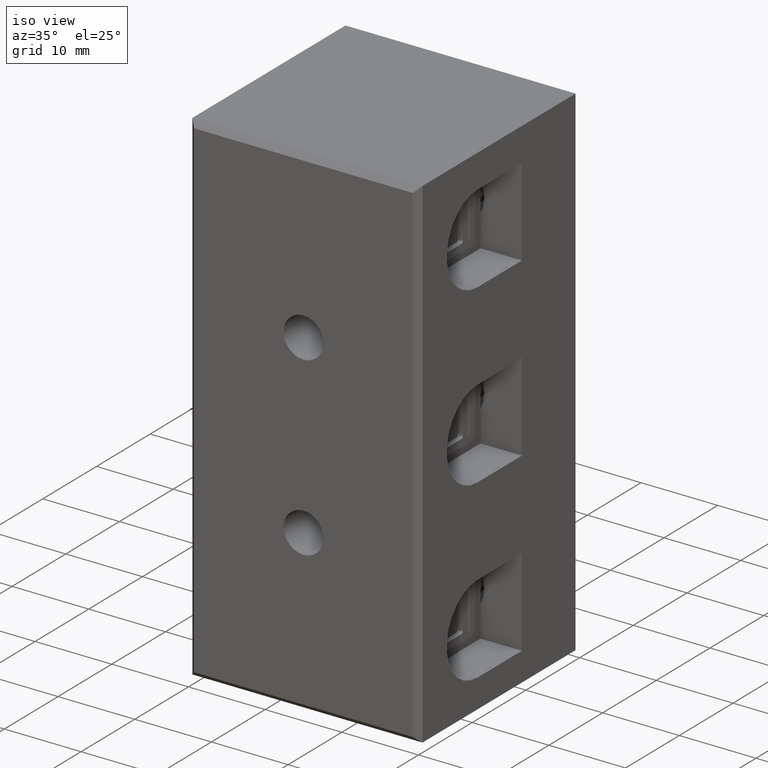
[diagram: clean part render]
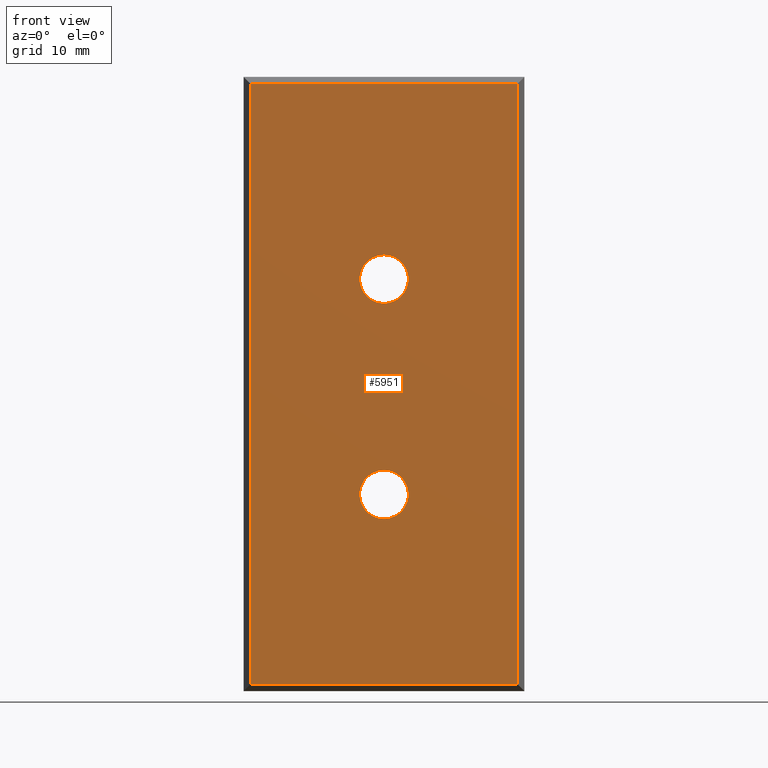
[diagram: tour spotlight — one face highlighted and labeled with its STEP entity id]
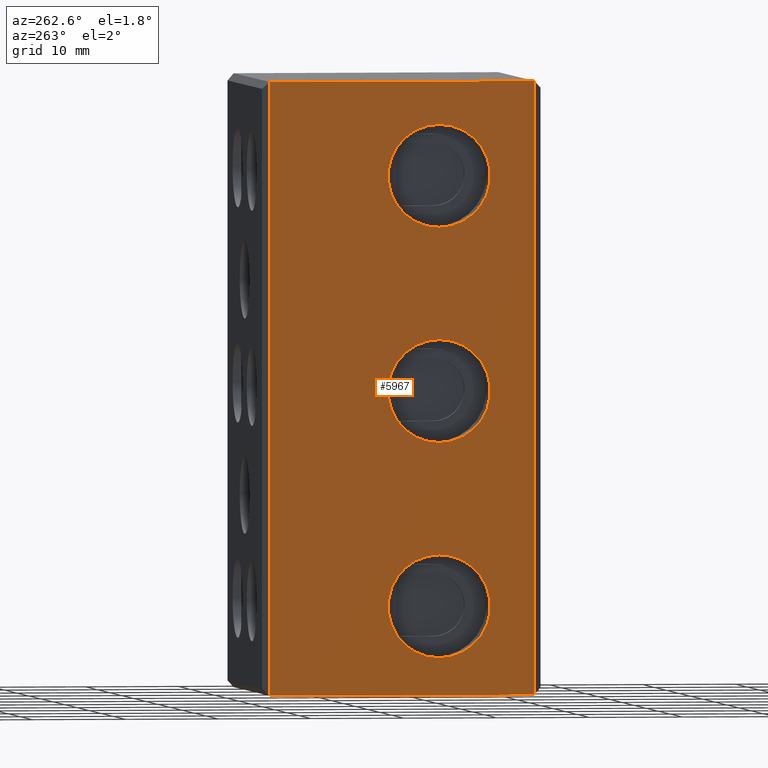
[diagram: tour spotlight — one face highlighted and labeled with its STEP entity id]
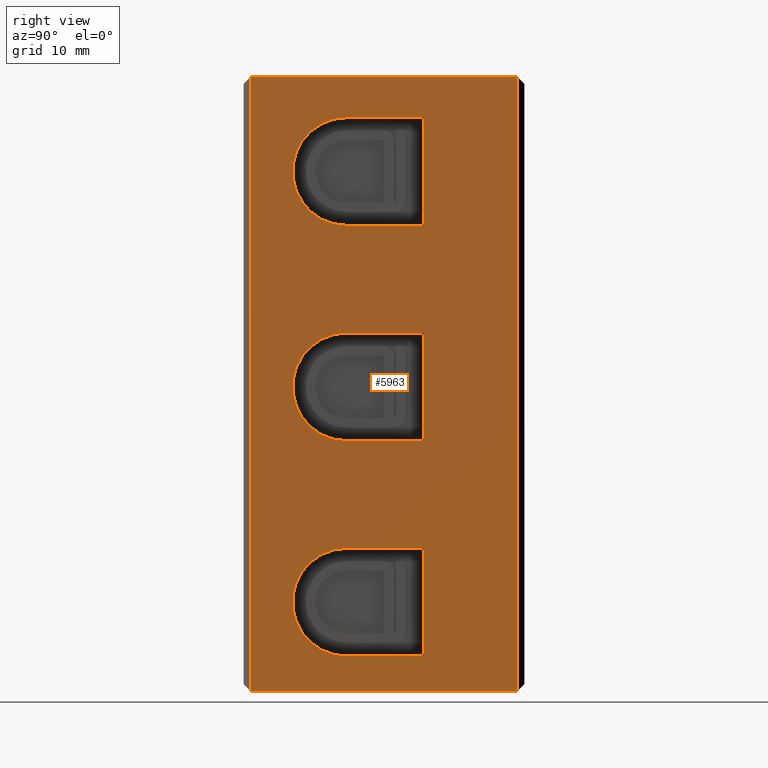
[diagram: tour spotlight — one face highlighted and labeled with its STEP entity id]
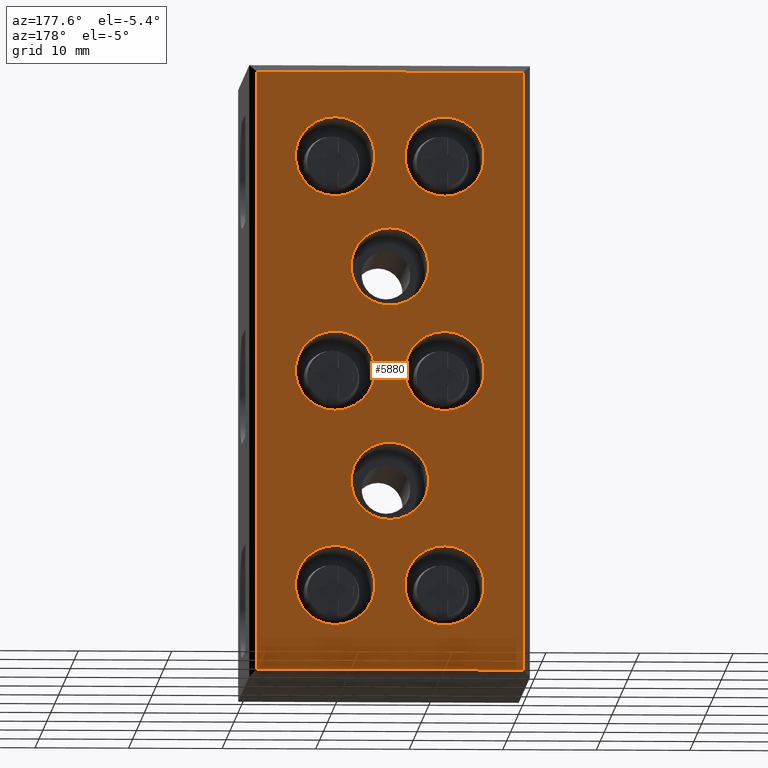
[diagram: tour spotlight — one face highlighted and labeled with its STEP entity id]
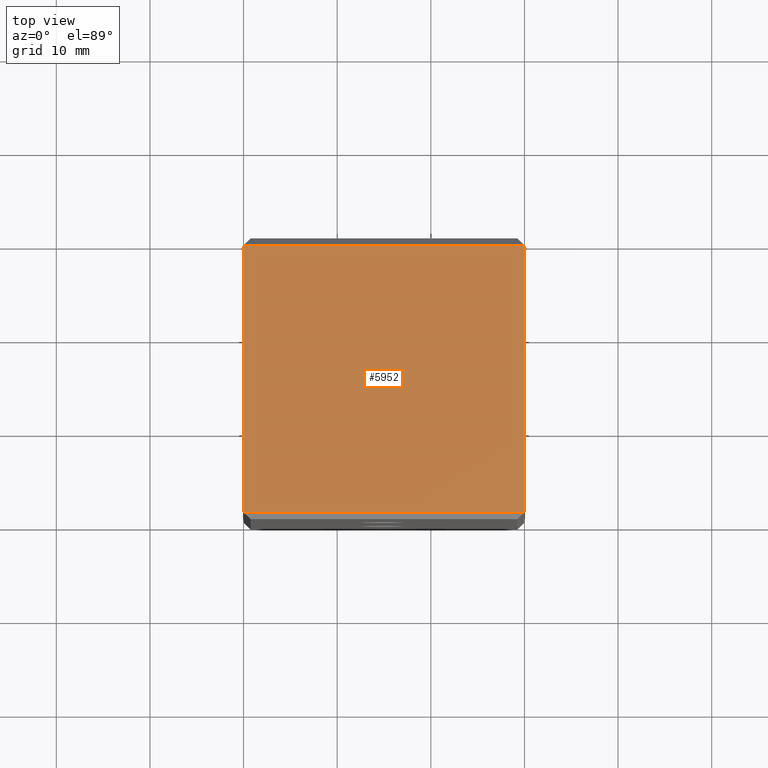
[diagram: tour spotlight — one face highlighted and labeled with its STEP entity id]
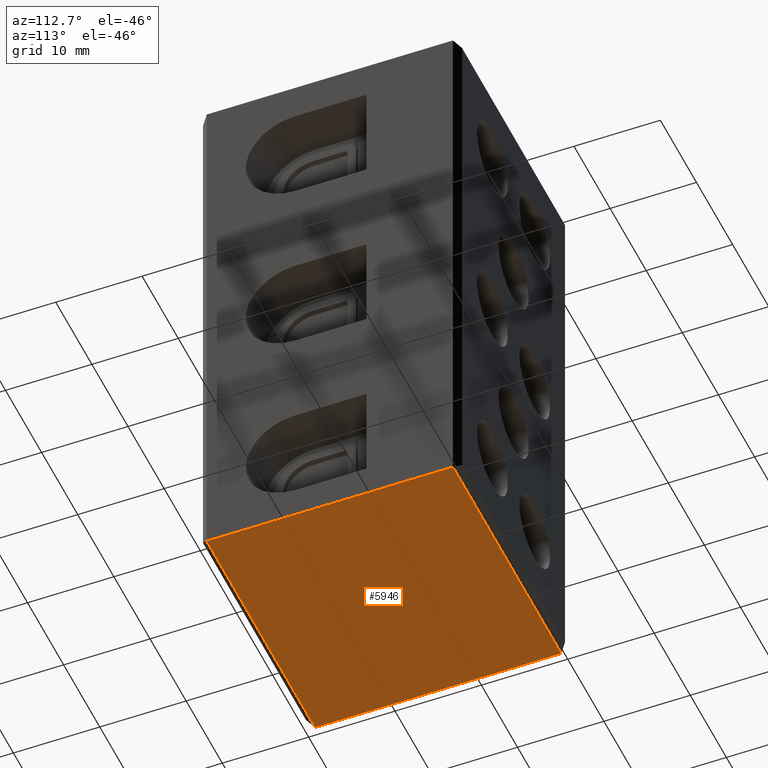
[diagram: tour spotlight — one face highlighted and labeled with its STEP entity id]
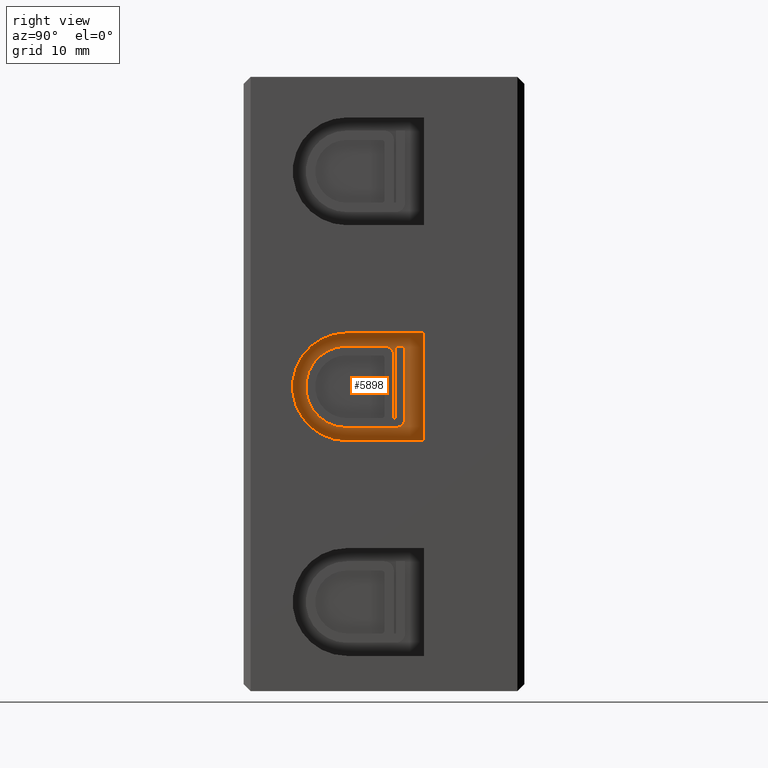
[diagram: tour spotlight — one face highlighted and labeled with its STEP entity id]
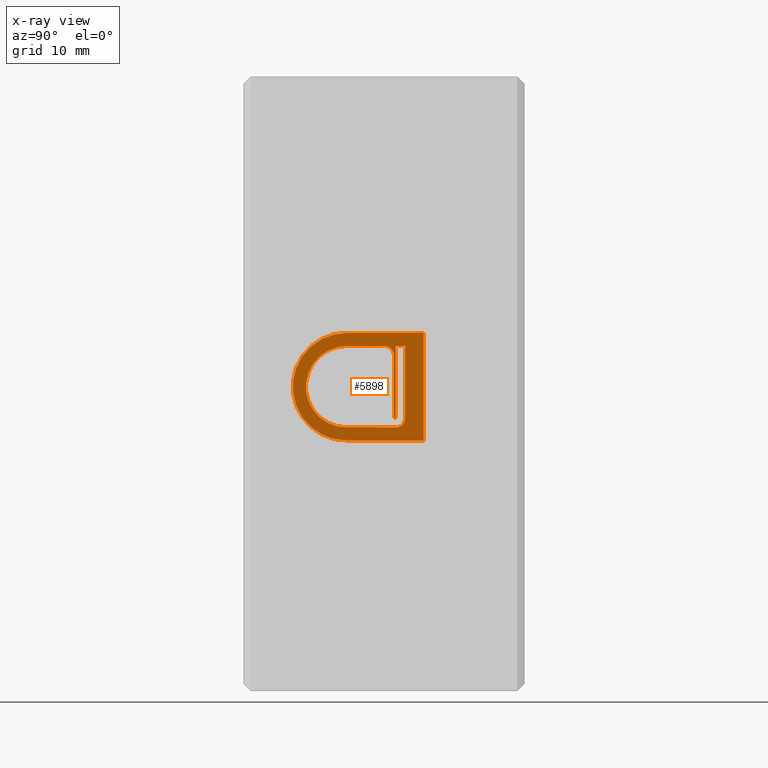
[diagram: x-ray of the same camera — body ghosted, this tour face saturated]
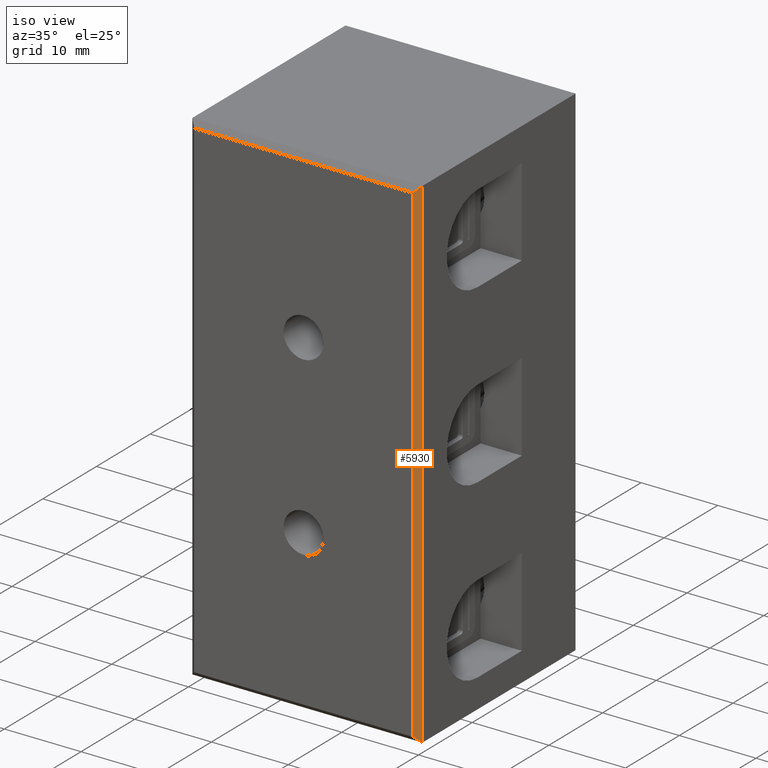
[diagram: tour spotlight — one face highlighted and labeled with its STEP entity id]
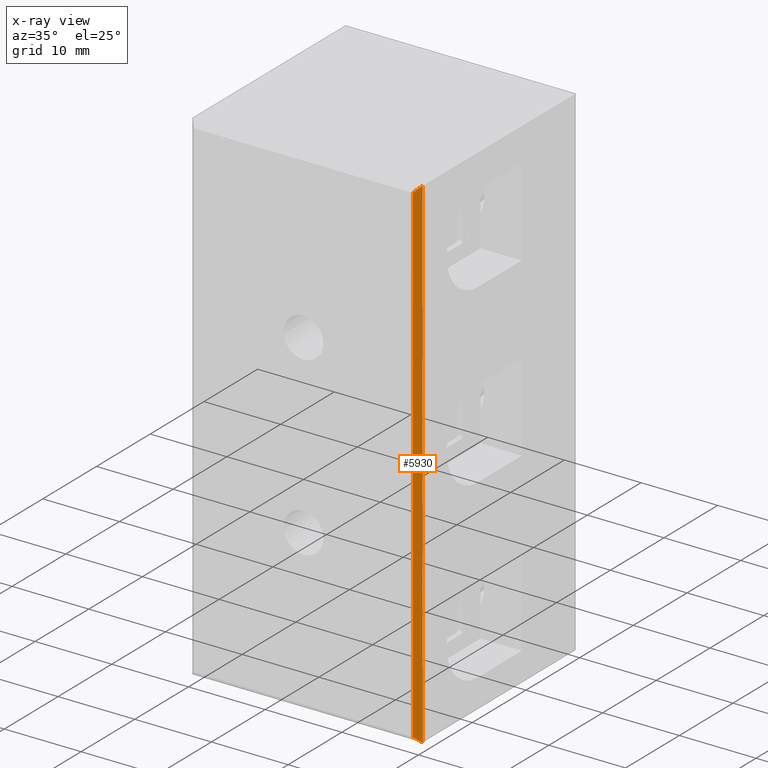
[diagram: x-ray of the same camera — body ghosted, this tour face saturated]
A machine part: a face-by-face anatomy tour. The part has 321 B-rep faces; the first image is the clean iso view, then the 8 largest visible faces are spotlighted one at a time (largest first), each with its STEP entity span.

Face 1 — front view, entity #5951. In plain terms, the highlighted planar face has unit normal (0, 1, 0).
Definition (entity closure, byte-faithful):
#294 = LINE ( 'NONE', #321, #9343 ) ;
#319 = DIRECTION ( 'NONE',  ( -1.000000000000000000, -0.0000000000000000000, 0.0000000000000000000 ) ) ;
#321 = CARTESIAN_POINT ( 'NONE',  ( 8.033683002406635800E-015, 0.0000000000000000000, 0.7500000000000145400 ) ) ;
#331 = DIRECTION ( 'NONE',  ( 1.000000000000000000, 0.0000000000000000000, -0.0000000000000000000 ) ) ;
#332 = LINE ( 'NONE', #338, #9310 ) ;
#333 = DIRECTION ( 'NONE',  ( -0.0000000000000000000, -1.000000000000000000, -0.0000000000000000000 ) ) ;
#338 = CARTESIAN_POINT ( 'NONE',  ( 0.7499999999999984500, 0.0000000000000000000, 65.59999999999999400 ) ) ;
#339 = CARTESIAN_POINT ( 'NONE',  ( 8.033683002406635800E-015, 0.0000000000000000000, 64.85000000000000900 ) ) ;
#340 = CARTESIAN_POINT ( 'NONE',  ( 15.00000000000008200, 0.0000000000000000000, 44.00000000000000000 ) ) ;
#347 = LINE ( 'NONE', #363, #9440 ) ;
#358 = DIRECTION ( 'NONE',  ( 0.0000000000000000000, 0.0000000000000000000, 1.000000000000000000 ) ) ;
#362 = LINE ( 'NONE', #339, #9304 ) ;
#363 = CARTESIAN_POINT ( 'NONE',  ( 29.25000000000000400, 0.0000000000000000000, 65.59999999999999400 ) ) ;
#365 = DIRECTION ( 'NONE',  ( 0.0000000000000000000, -0.0000000000000000000, 1.000000000000000000 ) ) ;
#367 = DIRECTION ( 'NONE',  ( -0.0000000000000000000, 0.0000000000000000000, -1.000000000000000000 ) ) ;
#419 = CARTESIAN_POINT ( 'NONE',  ( 15.00000000000000000, 0.0000000000000000000, 21.00000000000000000 ) ) ;
#421 = DIRECTION ( 'NONE',  ( -0.0000000000000000000, -1.000000000000000000, -0.0000000000000000000 ) ) ;
#431 = DIRECTION ( 'NONE',  ( 0.0000000000000000000, 0.0000000000000000000, 1.000000000000000000 ) ) ;
#1497 = FACE_OUTER_BOUND ( 'NONE', #8532, .T. ) ;
#1498 = DIRECTION ( 'NONE',  ( 0.0000000000000000000, 1.000000000000000000, 0.0000000000000000000 ) ) ;
#1522 = FACE_BOUND ( 'NONE', #8637, .T. ) ;
#1523 = CARTESIAN_POINT ( 'NONE',  ( 8.033683002406635800E-015, 0.0000000000000000000, 65.59999999999999400 ) ) ;
#1527 = FACE_BOUND ( 'NONE', #8590, .T. ) ;
#1528 = PLANE ( 'NONE',  #2699 ) ;
#1530 = DIRECTION ( 'NONE',  ( 0.0000000000000000000, -0.0000000000000000000, 1.000000000000000000 ) ) ;
#2004 = CARTESIAN_POINT ( 'NONE',  ( 15.00000000000008200, 0.0000000000000000000, 44.00000000000000000 ) ) ;
#2013 = DIRECTION ( 'NONE',  ( -0.0000000000000000000, -1.000000000000000000, -0.0000000000000000000 ) ) ;
#2029 = DIRECTION ( 'NONE',  ( 0.0000000000000000000, 0.0000000000000000000, 1.000000000000000000 ) ) ;
#2033 = DIRECTION ( 'NONE',  ( -0.0000000000000000000, -1.000000000000000000, -0.0000000000000000000 ) ) ;
#2045 = CARTESIAN_POINT ( 'NONE',  ( 15.00000000000000000, 0.0000000000000000000, 21.00000000000000000 ) ) ;
#2062 = DIRECTION ( 'NONE',  ( 0.0000000000000000000, 0.0000000000000000000, 1.000000000000000000 ) ) ;
#2699 = AXIS2_PLACEMENT_3D ( 'NONE', #1523, #1498, #1530 ) ;
#2816 = CIRCLE ( 'NONE', #2817, 2.599999999999998300 ) ;
#2817 = AXIS2_PLACEMENT_3D ( 'NONE', #2004, #2013, #2062 ) ;
#2821 = CIRCLE ( 'NONE', #2831, 2.599999999999998300 ) ;
#2831 = AXIS2_PLACEMENT_3D ( 'NONE', #2045, #2033, #2029 ) ;
#3463 = ORIENTED_EDGE ( 'NONE', *, *, #7569, .F. ) ;
#3465 = ORIENTED_EDGE ( 'NONE', *, *, #7584, .F. ) ;
#3483 = ORIENTED_EDGE ( 'NONE', *, *, #7588, .F. ) ;
#3488 = ORIENTED_EDGE ( 'NONE', *, *, #7583, .F. ) ;
#3489 = ORIENTED_EDGE ( 'NONE', *, *, #7585, .F. ) ;
#3492 = ORIENTED_EDGE ( 'NONE', *, *, #6057, .F. ) ;
#3509 = ORIENTED_EDGE ( 'NONE', *, *, #6059, .F. ) ;
#3557 = ORIENTED_EDGE ( 'NONE', *, *, #7607, .F. ) ;
#4584 = VERTEX_POINT ( 'NONE', #8978 ) ;
#4602 = VERTEX_POINT ( 'NONE', #9012 ) ;
#4605 = VERTEX_POINT ( 'NONE', #9105 ) ;
#4632 = VERTEX_POINT ( 'NONE', #9094 ) ;
#4732 = VERTEX_POINT ( 'NONE', #9315 ) ;
#4777 = VERTEX_POINT ( 'NONE', #9386 ) ;
#4783 = VERTEX_POINT ( 'NONE', #9423 ) ;
#4806 = VERTEX_POINT ( 'NONE', #9419 ) ;
#5951 = ADVANCED_FACE ( 'NONE', ( #1497, #1522, #1527 ), #1528, .F. ) ;
#6057 = EDGE_CURVE ( 'NONE', #4732, #4783, #2816, .T. ) ;
#6059 = EDGE_CURVE ( 'NONE', #4806, #4777, #2821, .T. ) ;
#7569 = EDGE_CURVE ( 'NONE', #4584, #4602, #294, .T. ) ;
#7583 = EDGE_CURVE ( 'NONE', #4605, #4632, #362, .T. ) ;
#7584 = EDGE_CURVE ( 'NONE', #4602, #4605, #332, .T. ) ;
#7585 = EDGE_CURVE ( 'NONE', #4783, #4732, #9312, .T. ) ;
#7588 = EDGE_CURVE ( 'NONE', #4632, #4584, #347, .T. ) ;
#7607 = EDGE_CURVE ( 'NONE', #4777, #4806, #9450, .T. ) ;
#8532 = EDGE_LOOP ( 'NONE', ( #3463, #3483, #3488, #3465 ) ) ;
#8590 = EDGE_LOOP ( 'NONE', ( #3509, #3557 ) ) ;
#8637 = EDGE_LOOP ( 'NONE', ( #3492, #3489 ) ) ;
#8978 = CARTESIAN_POINT ( 'NONE',  ( 29.25000000000000700, 1.876143545934651800E-015, 0.7500000000000073300 ) ) ;
#9012 = CARTESIAN_POINT ( 'NONE',  ( 0.7499999999999993300, 2.827018580415299600E-015, 0.7499999999999995600 ) ) ;
#9094 = CARTESIAN_POINT ( 'NONE',  ( 29.25000000000000400, 8.074996699065094000E-016, 64.85000000000000900 ) ) ;
#9105 = CARTESIAN_POINT ( 'NONE',  ( 0.7500000000000075500, 2.461481093409389100E-015, 64.85000000000002300 ) ) ;
#9304 = VECTOR ( 'NONE', #331, 1000.000000000000000 ) ;
#9310 = VECTOR ( 'NONE', #365, 1000.000000000000000 ) ;
#9312 = CIRCLE ( 'NONE', #9313, 2.599999999999998300 ) ;
#9313 = AXIS2_PLACEMENT_3D ( 'NONE', #340, #333, #358 ) ;
#9315 = CARTESIAN_POINT ( 'NONE',  ( 15.00000000000008200, 0.0000000000000000000, 46.59999999999999400 ) ) ;
#9343 = VECTOR ( 'NONE', #319, 1000.000000000000000 ) ;
#9386 = CARTESIAN_POINT ( 'NONE',  ( 15.00000000000000000, 0.0000000000000000000, 18.40000000000000200 ) ) ;
#9389 = AXIS2_PLACEMENT_3D ( 'NONE', #419, #421, #431 ) ;
#9419 = CARTESIAN_POINT ( 'NONE',  ( 15.00000000000000000, 0.0000000000000000000, 23.59999999999999800 ) ) ;
#9423 = CARTESIAN_POINT ( 'NONE',  ( 15.00000000000008200, 0.0000000000000000000, 41.39999999999999900 ) ) ;
#9440 = VECTOR ( 'NONE', #367, 1000.000000000000000 ) ;
#9450 = CIRCLE ( 'NONE', #9389, 2.599999999999998300 ) ;

Face 2 — auxiliary view, entity #5967. In plain terms, the highlighted planar face has unit normal (1, 0, -0).
Definition (entity closure, byte-faithful):
#210 = DIRECTION ( 'NONE',  ( 1.224646799147353700E-016, 0.0000000000000000000, 1.000000000000000000 ) ) ;
#216 = CARTESIAN_POINT ( 'NONE',  ( 6.938893903907228400E-015, 11.00000000000000000, 55.50000000000000000 ) ) ;
#222 = DIRECTION ( 'NONE',  ( 1.224646799147353700E-016, 0.0000000000000000000, 1.000000000000000000 ) ) ;
#231 = CARTESIAN_POINT ( 'NONE',  ( 4.336808689942017700E-015, 11.00000000000000000, 32.50000000000000000 ) ) ;
#233 = DIRECTION ( 'NONE',  ( -1.000000000000000000, 0.0000000000000000000, 1.224646799147353200E-016 ) ) ;
#242 = DIRECTION ( 'NONE',  ( -1.000000000000000000, 0.0000000000000000000, 1.224646799147353200E-016 ) ) ;
#248 = DIRECTION ( 'NONE',  ( 0.0000000000000000000, 1.000000000000000000, 0.0000000000000000000 ) ) ;
#260 = LINE ( 'NONE', #264, #9335 ) ;
#264 = CARTESIAN_POINT ( 'NONE',  ( 0.0000000000000000000, 30.00000000000000000, 0.0000000000000000000 ) ) ;
#375 = CARTESIAN_POINT ( 'NONE',  ( 0.0000000000000000000, 0.7500000000000006700, 0.0000000000000000000 ) ) ;
#382 = LINE ( 'NONE', #375, #9355 ) ;
#393 = DIRECTION ( 'NONE',  ( 6.123233995736764800E-017, 6.123233995736764800E-017, 1.000000000000000000 ) ) ;
#1596 = DIRECTION ( 'NONE',  ( 1.000000000000000000, 0.0000000000000000000, -1.224646799147353200E-016 ) ) ;
#1602 = CARTESIAN_POINT ( 'NONE',  ( 0.0000000000000000000, 30.00000000000000000, 0.0000000000000000000 ) ) ;
#1605 = FACE_BOUND ( 'NONE', #8559, .T. ) ;
#1607 = FACE_BOUND ( 'NONE', #8547, .T. ) ;
#1609 = PLANE ( 'NONE',  #2719 ) ;
#1631 = DIRECTION ( 'NONE',  ( -1.224646799147353200E-016, 0.0000000000000000000, -1.000000000000000000 ) ) ;
#1642 = FACE_BOUND ( 'NONE', #8518, .T. ) ;
#1646 = FACE_OUTER_BOUND ( 'NONE', #8550, .T. ) ;
#1941 = DIRECTION ( 'NONE',  ( -1.000000000000000000, 0.0000000000000000000, 1.224646799147353200E-016 ) ) ;
#1960 = DIRECTION ( 'NONE',  ( 1.224646799147353700E-016, 0.0000000000000000000, 1.000000000000000000 ) ) ;
#1967 = CARTESIAN_POINT ( 'NONE',  ( 4.336808689942017700E-015, 11.00000000000000000, 32.50000000000000000 ) ) ;
#1983 = CARTESIAN_POINT ( 'NONE',  ( 6.938893903907228400E-015, 11.00000000000000000, 55.50000000000000000 ) ) ;
#1988 = DIRECTION ( 'NONE',  ( -1.000000000000000000, 0.0000000000000000000, 1.224646799147353200E-016 ) ) ;
#2015 = DIRECTION ( 'NONE',  ( 1.224646799147353700E-016, 0.0000000000000000000, 1.000000000000000000 ) ) ;
#2025 = DIRECTION ( 'NONE',  ( -1.000000000000000000, 0.0000000000000000000, 1.224646799147353200E-016 ) ) ;
#2035 = CARTESIAN_POINT ( 'NONE',  ( 1.301042606982605300E-015, 11.00000000000000000, 9.500000000000000000 ) ) ;
#2044 = DIRECTION ( 'NONE',  ( 1.224646799147353200E-016, 0.0000000000000000000, 1.000000000000000000 ) ) ;
#2719 = AXIS2_PLACEMENT_3D ( 'NONE', #1602, #1596, #1631 ) ;
#2781 = AXIS2_PLACEMENT_3D ( 'NONE', #1967, #1941, #1960 ) ;
#2797 = CIRCLE ( 'NONE', #2781, 5.499999999999998200 ) ;
#2807 = AXIS2_PLACEMENT_3D ( 'NONE', #1983, #1988, #2015 ) ;
#2812 = CIRCLE ( 'NONE', #2807, 5.499999999999998200 ) ;
#2822 = CIRCLE ( 'NONE', #2830, 5.500000000000000000 ) ;
#2830 = AXIS2_PLACEMENT_3D ( 'NONE', #2035, #2025, #2044 ) ;
#3417 = ORIENTED_EDGE ( 'NONE', *, *, #7509, .F. ) ;
#3457 = ORIENTED_EDGE ( 'NONE', *, *, #7600, .T. ) ;
#3467 = ORIENTED_EDGE ( 'NONE', *, *, #6043, .F. ) ;
#3484 = ORIENTED_EDGE ( 'NONE', *, *, #7495, .F. ) ;
#3491 = ORIENTED_EDGE ( 'NONE', *, *, #6049, .F. ) ;
#3497 = ORIENTED_EDGE ( 'NONE', *, *, #7549, .F. ) ;
#3518 = ORIENTED_EDGE ( 'NONE', *, *, #7502, .F. ) ;
#3568 = ORIENTED_EDGE ( 'NONE', *, *, #7563, .F. ) ;
#3584 = ORIENTED_EDGE ( 'NONE', *, *, #6058, .F. ) ;
#3585 = ORIENTED_EDGE ( 'NONE', *, *, #7539, .F. ) ;
#4562 = VERTEX_POINT ( 'NONE', #9032 ) ;
#4603 = VERTEX_POINT ( 'NONE', #9097 ) ;
#4604 = VERTEX_POINT ( 'NONE', #9099 ) ;
#4631 = VERTEX_POINT ( 'NONE', #9059 ) ;
#4711 = VERTEX_POINT ( 'NONE', #9198 ) ;
#4759 = VERTEX_POINT ( 'NONE', #9356 ) ;
#4763 = VERTEX_POINT ( 'NONE', #9300 ) ;
#4795 = VERTEX_POINT ( 'NONE', #9425 ) ;
#4814 = VERTEX_POINT ( 'NONE', #9395 ) ;
#4816 = VERTEX_POINT ( 'NONE', #9435 ) ;
#5230 = DIRECTION ( 'NONE',  ( -0.0000000000000000000, -1.000000000000000000, -0.0000000000000000000 ) ) ;
#5578 = CARTESIAN_POINT ( 'NONE',  ( 1.301042606982605300E-015, 11.00000000000000000, 9.500000000000000000 ) ) ;
#5613 = DIRECTION ( 'NONE',  ( -1.000000000000000000, 0.0000000000000000000, 1.224646799147353200E-016 ) ) ;
#5621 = DIRECTION ( 'NONE',  ( 1.224646799147353200E-016, -0.0000000000000000000, 1.000000000000000000 ) ) ;
#5631 = LINE ( 'NONE', #5642, #9170 ) ;
#5632 = LINE ( 'NONE', #5639, #9119 ) ;
#5639 = CARTESIAN_POINT ( 'NONE',  ( 8.033683002406635800E-015, 30.00000000000000000, 65.59999999999999400 ) ) ;
#5642 = CARTESIAN_POINT ( 'NONE',  ( 0.0000000000000000000, 29.25000000000000000, 0.0000000000000000000 ) ) ;
#5643 = DIRECTION ( 'NONE',  ( 1.224646799147353200E-016, 0.0000000000000000000, 1.000000000000000000 ) ) ;
#5967 = ADVANCED_FACE ( 'NONE', ( #1646, #1607, #1605, #1642 ), #1609, .F. ) ;
#6043 = EDGE_CURVE ( 'NONE', #4814, #4795, #2797, .T. ) ;
#6049 = EDGE_CURVE ( 'NONE', #4763, #4711, #2812, .T. ) ;
#6058 = EDGE_CURVE ( 'NONE', #4816, #4759, #2822, .T. ) ;
#7495 = EDGE_CURVE ( 'NONE', #4759, #4816, #9141, .T. ) ;
#7502 = EDGE_CURVE ( 'NONE', #4603, #4604, #5631, .T. ) ;
#7509 = EDGE_CURVE ( 'NONE', #4604, #4631, #5632, .T. ) ;
#7539 = EDGE_CURVE ( 'NONE', #4711, #4763, #9321, .T. ) ;
#7549 = EDGE_CURVE ( 'NONE', #4795, #4814, #9306, .T. ) ;
#7563 = EDGE_CURVE ( 'NONE', #4562, #4603, #260, .T. ) ;
#7600 = EDGE_CURVE ( 'NONE', #4562, #4631, #382, .T. ) ;
#8518 = EDGE_LOOP ( 'NONE', ( #3585, #3491 ) ) ;
#8547 = EDGE_LOOP ( 'NONE', ( #3484, #3584 ) ) ;
#8550 = EDGE_LOOP ( 'NONE', ( #3457, #3417, #3518, #3568 ) ) ;
#8559 = EDGE_LOOP ( 'NONE', ( #3497, #3467 ) ) ;
#9032 = CARTESIAN_POINT ( 'NONE',  ( 3.388131789017098400E-017, 0.7500000000000006700, 2.710505431213756200E-017 ) ) ;
#9059 = CARTESIAN_POINT ( 'NONE',  ( 6.626142673712950900E-015, 0.7500000000000033300, 65.59999999999999400 ) ) ;
#9097 = CARTESIAN_POINT ( 'NONE',  ( -8.951284751764104900E-016, 29.25000000000000000, -1.409462824231156100E-014 ) ) ;
#9099 = CARTESIAN_POINT ( 'NONE',  ( 7.899252554439567400E-015, 29.25000000000000000, 65.59999999999999400 ) ) ;
#9119 = VECTOR ( 'NONE', #5230, 1000.000000000000000 ) ;
#9141 = CIRCLE ( 'NONE', #9143, 5.500000000000000000 ) ;
#9143 = AXIS2_PLACEMENT_3D ( 'NONE', #5578, #5613, #5643 ) ;
#9170 = VECTOR ( 'NONE', #5621, 1000.000000000000000 ) ;
#9198 = CARTESIAN_POINT ( 'NONE',  ( 7.612449643438273300E-015, 11.00000000000000000, 61.00000000000000000 ) ) ;
#9300 = CARTESIAN_POINT ( 'NONE',  ( 6.265338164376184300E-015, 11.00000000000000000, 50.00000000000000000 ) ) ;
#9306 = CIRCLE ( 'NONE', #9328, 5.499999999999998200 ) ;
#9320 = AXIS2_PLACEMENT_3D ( 'NONE', #216, #233, #210 ) ;
#9321 = CIRCLE ( 'NONE', #9320, 5.499999999999998200 ) ;
#9328 = AXIS2_PLACEMENT_3D ( 'NONE', #231, #242, #222 ) ;
#9335 = VECTOR ( 'NONE', #248, 1000.000000000000000 ) ;
#9355 = VECTOR ( 'NONE', #393, 1000.000000000000000 ) ;
#9356 = CARTESIAN_POINT ( 'NONE',  ( 1.974598346513649800E-015, 11.00000000000000000, 15.00000000000000000 ) ) ;
#9395 = CARTESIAN_POINT ( 'NONE',  ( 3.663252950410973600E-015, 11.00000000000000000, 27.00000000000000400 ) ) ;
#9425 = CARTESIAN_POINT ( 'NONE',  ( 5.010364429473061800E-015, 11.00000000000000000, 38.00000000000000000 ) ) ;
#9435 = CARTESIAN_POINT ( 'NONE',  ( 6.274868674515611200E-016, 11.00000000000000000, 4.000000000000000000 ) ) ;

Face 3 — right view, entity #5963. In plain terms, the highlighted planar face has unit normal (-1, 0, 0).
Definition (entity closure, byte-faithful):
#120 = LINE ( 'NONE', #151, #9228 ) ;
#121 = CARTESIAN_POINT ( 'NONE',  ( 30.00000000000000000, 11.00000000000000000, 32.50000000000000000 ) ) ;
#133 = DIRECTION ( 'NONE',  ( 0.0000000000000000000, 1.000000000000000000, -0.0000000000000000000 ) ) ;
#135 = DIRECTION ( 'NONE',  ( 0.0000000000000000000, 0.0000000000000000000, 1.000000000000000000 ) ) ;
#136 = LINE ( 'NONE', #158, #9223 ) ;
#141 = DIRECTION ( 'NONE',  ( 1.000000000000000000, -0.0000000000000000000, -1.224646799147353200E-016 ) ) ;
#142 = LINE ( 'NONE', #150, #9200 ) ;
#148 = DIRECTION ( 'NONE',  ( -0.0000000000000000000, -1.000000000000000000, 0.0000000000000000000 ) ) ;
#150 = CARTESIAN_POINT ( 'NONE',  ( 30.00000000000000700, 30.00000000000000000, 65.59999999999999400 ) ) ;
#151 = CARTESIAN_POINT ( 'NONE',  ( 30.00000000000000000, 30.00000000000000000, 15.24999999999999600 ) ) ;
#153 = DIRECTION ( 'NONE',  ( -5.288791085295143700E-017, 5.288791085295143700E-017, -1.000000000000000000 ) ) ;
#158 = CARTESIAN_POINT ( 'NONE',  ( 30.00000000000000400, 0.7500000000000050000, 0.0000000000000000000 ) ) ;
#161 = CARTESIAN_POINT ( 'NONE',  ( 30.00000000000000700, 30.00000000000000000, 61.25000000000000000 ) ) ;
#164 = LINE ( 'NONE', #165, #9314 ) ;
#165 = CARTESIAN_POINT ( 'NONE',  ( 30.00000000000000000, 30.00000000000000000, 3.749999999999995100 ) ) ;
#174 = CARTESIAN_POINT ( 'NONE',  ( 30.00000000000001400, 11.00000000000000000, 55.50000000000000000 ) ) ;
#175 = CARTESIAN_POINT ( 'NONE',  ( 30.00000000000000000, 19.24999999999999600, 0.0000000000000000000 ) ) ;
#178 = LINE ( 'NONE', #175, #9159 ) ;
#181 = DIRECTION ( 'NONE',  ( 1.057758217059028900E-016, 0.0000000000000000000, 1.000000000000000000 ) ) ;
#187 = DIRECTION ( 'NONE',  ( 1.000000000000000000, -0.0000000000000000000, -1.224646799147353200E-016 ) ) ;
#193 = DIRECTION ( 'NONE',  ( 0.0000000000000000000, 0.0000000000000000000, 1.000000000000000000 ) ) ;
#195 = DIRECTION ( 'NONE',  ( 0.0000000000000000000, 1.000000000000000000, -0.0000000000000000000 ) ) ;
#201 = LINE ( 'NONE', #161, #9278 ) ;
#209 = DIRECTION ( 'NONE',  ( -0.0000000000000000000, -1.000000000000000000, 0.0000000000000000000 ) ) ;
#211 = DIRECTION ( 'NONE',  ( -1.057758217059028900E-016, -0.0000000000000000000, -1.000000000000000000 ) ) ;
#215 = LINE ( 'NONE', #224, #9268 ) ;
#221 = CARTESIAN_POINT ( 'NONE',  ( 30.00000000000000000, 29.25000000000000000, 0.0000000000000000000 ) ) ;
#223 = CARTESIAN_POINT ( 'NONE',  ( 30.00000000000000000, 11.00000000000000000, 9.499999999999996400 ) ) ;
#224 = CARTESIAN_POINT ( 'NONE',  ( 30.00000000000000400, 30.00000000000000000, 38.25000000000000000 ) ) ;
#227 = DIRECTION ( 'NONE',  ( 1.000000000000000000, -0.0000000000000000000, -1.224646799147353200E-016 ) ) ;
#232 = DIRECTION ( 'NONE',  ( 0.0000000000000000000, 0.0000000000000000000, 1.000000000000000000 ) ) ;
#237 = LINE ( 'NONE', #221, #9317 ) ;
#245 = DIRECTION ( 'NONE',  ( -0.0000000000000000000, -1.000000000000000000, 0.0000000000000000000 ) ) ;
#262 = CARTESIAN_POINT ( 'NONE',  ( 30.00000000000000000, 19.24999999999999600, 0.0000000000000000000 ) ) ;
#263 = DIRECTION ( 'NONE',  ( 1.057758217059028900E-016, 0.0000000000000000000, 1.000000000000000000 ) ) ;
#278 = LINE ( 'NONE', #262, #9330 ) ;
#432 = LINE ( 'NONE', #434, #9409 ) ;
#434 = CARTESIAN_POINT ( 'NONE',  ( 30.00000000000000000, 30.00000000000000000, 0.0000000000000000000 ) ) ;
#445 = DIRECTION ( 'NONE',  ( -0.0000000000000000000, 1.000000000000000000, 0.0000000000000000000 ) ) ;
#1578 = FACE_BOUND ( 'NONE', #8579, .T. ) ;
#1591 = PLANE ( 'NONE',  #2716 ) ;
#1599 = FACE_OUTER_BOUND ( 'NONE', #8567, .T. ) ;
#1610 = DIRECTION ( 'NONE',  ( -1.000000000000000000, 0.0000000000000000000, 1.057758217059028900E-016 ) ) ;
#1619 = FACE_BOUND ( 'NONE', #8586, .T. ) ;
#1620 = DIRECTION ( 'NONE',  ( 1.057758217059028900E-016, 0.0000000000000000000, 1.000000000000000000 ) ) ;
#1644 = CARTESIAN_POINT ( 'NONE',  ( 30.00000000000000000, 30.00000000000000000, 0.0000000000000000000 ) ) ;
#1649 = FACE_BOUND ( 'NONE', #8512, .T. ) ;
#2716 = AXIS2_PLACEMENT_3D ( 'NONE', #1644, #1610, #1620 ) ;
#3404 = ORIENTED_EDGE ( 'NONE', *, *, #7548, .F. ) ;
#3408 = ORIENTED_EDGE ( 'NONE', *, *, #7536, .F. ) ;
#3411 = ORIENTED_EDGE ( 'NONE', *, *, #7500, .F. ) ;
#3413 = ORIENTED_EDGE ( 'NONE', *, *, #7511, .F. ) ;
#3415 = ORIENTED_EDGE ( 'NONE', *, *, #7532, .F. ) ;
#3419 = ORIENTED_EDGE ( 'NONE', *, *, #7555, .F. ) ;
#3431 = ORIENTED_EDGE ( 'NONE', *, *, #7540, .F. ) ;
#3441 = ORIENTED_EDGE ( 'NONE', *, *, #7618, .T. ) ;
#3444 = ORIENTED_EDGE ( 'NONE', *, *, #7518, .F. ) ;
#3447 = ORIENTED_EDGE ( 'NONE', *, *, #7524, .F. ) ;
#3451 = ORIENTED_EDGE ( 'NONE', *, *, #7506, .F. ) ;
#3459 = ORIENTED_EDGE ( 'NONE', *, *, #7498, .F. ) ;
#3480 = ORIENTED_EDGE ( 'NONE', *, *, #7545, .F. ) ;
#3505 = ORIENTED_EDGE ( 'NONE', *, *, #7516, .F. ) ;
#3511 = ORIENTED_EDGE ( 'NONE', *, *, #7513, .T. ) ;
#3523 = ORIENTED_EDGE ( 'NONE', *, *, #7543, .F. ) ;
#4556 = VERTEX_POINT ( 'NONE', #9028 ) ;
#4559 = VERTEX_POINT ( 'NONE', #8998 ) ;
#4566 = VERTEX_POINT ( 'NONE', #8946 ) ;
#4567 = VERTEX_POINT ( 'NONE', #9043 ) ;
#4575 = VERTEX_POINT ( 'NONE', #8962 ) ;
#4577 = VERTEX_POINT ( 'NONE', #8994 ) ;
#4585 = VERTEX_POINT ( 'NONE', #8996 ) ;
#4592 = VERTEX_POINT ( 'NONE', #8967 ) ;
#4596 = VERTEX_POINT ( 'NONE', #9041 ) ;
#4600 = VERTEX_POINT ( 'NONE', #9001 ) ;
#4618 = VERTEX_POINT ( 'NONE', #9090 ) ;
#4621 = VERTEX_POINT ( 'NONE', #9154 ) ;
#4628 = VERTEX_POINT ( 'NONE', #9152 ) ;
#4629 = VERTEX_POINT ( 'NONE', #9063 ) ;
#4636 = VERTEX_POINT ( 'NONE', #9142 ) ;
#4641 = VERTEX_POINT ( 'NONE', #9125 ) ;
#5607 = LINE ( 'NONE', #5647, #9146 ) ;
#5623 = LINE ( 'NONE', #5652, #9175 ) ;
#5625 = DIRECTION ( 'NONE',  ( 0.0000000000000000000, 1.000000000000000000, -0.0000000000000000000 ) ) ;
#5633 = DIRECTION ( 'NONE',  ( 0.0000000000000000000, 1.000000000000000000, -0.0000000000000000000 ) ) ;
#5634 = DIRECTION ( 'NONE',  ( 1.057758217059028900E-016, 0.0000000000000000000, 1.000000000000000000 ) ) ;
#5645 = LINE ( 'NONE', #5649, #9189 ) ;
#5647 = CARTESIAN_POINT ( 'NONE',  ( 30.00000000000000400, 30.00000000000000000, 26.74999999999999600 ) ) ;
#5649 = CARTESIAN_POINT ( 'NONE',  ( 30.00000000000000700, 30.00000000000000000, 49.74999999999999300 ) ) ;
#5652 = CARTESIAN_POINT ( 'NONE',  ( 30.00000000000000000, 19.24999999999999600, 0.0000000000000000000 ) ) ;
#5963 = ADVANCED_FACE ( 'NONE', ( #1599, #1578, #1649, #1619 ), #1591, .F. ) ;
#7498 = EDGE_CURVE ( 'NONE', #4629, #4567, #5607, .T. ) ;
#7500 = EDGE_CURVE ( 'NONE', #4600, #4621, #5623, .T. ) ;
#7506 = EDGE_CURVE ( 'NONE', #4559, #4600, #5645, .T. ) ;
#7511 = EDGE_CURVE ( 'NONE', #4585, #4629, #9219, .T. ) ;
#7513 = EDGE_CURVE ( 'NONE', #4641, #4636, #136, .T. ) ;
#7516 = EDGE_CURVE ( 'NONE', #4641, #4628, #142, .T. ) ;
#7518 = EDGE_CURVE ( 'NONE', #4592, #4577, #120, .T. ) ;
#7524 = EDGE_CURVE ( 'NONE', #4567, #4618, #178, .T. ) ;
#7532 = EDGE_CURVE ( 'NONE', #4556, #4559, #9115, .T. ) ;
#7536 = EDGE_CURVE ( 'NONE', #4596, #4575, #164, .T. ) ;
#7540 = EDGE_CURVE ( 'NONE', #4621, #4556, #201, .T. ) ;
#7543 = EDGE_CURVE ( 'NONE', #4577, #4596, #9303, .T. ) ;
#7545 = EDGE_CURVE ( 'NONE', #4628, #4566, #237, .T. ) ;
#7548 = EDGE_CURVE ( 'NONE', #4618, #4585, #215, .T. ) ;
#7555 = EDGE_CURVE ( 'NONE', #4575, #4592, #278, .T. ) ;
#7618 = EDGE_CURVE ( 'NONE', #4636, #4566, #432, .T. ) ;
#8512 = EDGE_LOOP ( 'NONE', ( #3413, #3404, #3447, #3459 ) ) ;
#8567 = EDGE_LOOP ( 'NONE', ( #3511, #3441, #3480, #3505 ) ) ;
#8579 = EDGE_LOOP ( 'NONE', ( #3523, #3444, #3419, #3408 ) ) ;
#8586 = EDGE_LOOP ( 'NONE', ( #3415, #3431, #3411, #3451 ) ) ;
#8946 = CARTESIAN_POINT ( 'NONE',  ( 30.00000000000000400, 29.25000000000000000, -1.924458856161770400E-014 ) ) ;
#8962 = CARTESIAN_POINT ( 'NONE',  ( 30.00000000000000000, 19.24999999999999600, 3.749999999999995100 ) ) ;
#8967 = CARTESIAN_POINT ( 'NONE',  ( 30.00000000000000000, 19.24999999999999600, 15.24999999999999500 ) ) ;
#8994 = CARTESIAN_POINT ( 'NONE',  ( 30.00000000000000000, 11.00000000000000000, 15.24999999999999600 ) ) ;
#8996 = CARTESIAN_POINT ( 'NONE',  ( 30.00000000000000000, 11.00000000000000000, 38.25000000000000000 ) ) ;
#8998 = CARTESIAN_POINT ( 'NONE',  ( 30.00000000000001100, 11.00000000000000000, 49.74999999999999300 ) ) ;
#9001 = CARTESIAN_POINT ( 'NONE',  ( 30.00000000000001100, 19.24999999999999600, 49.74999999999999300 ) ) ;
#9028 = CARTESIAN_POINT ( 'NONE',  ( 30.00000000000001100, 11.00000000000000000, 61.25000000000000000 ) ) ;
#9041 = CARTESIAN_POINT ( 'NONE',  ( 30.00000000000000000, 11.00000000000000000, 3.749999999999994700 ) ) ;
#9043 = CARTESIAN_POINT ( 'NONE',  ( 30.00000000000000000, 19.24999999999999600, 26.74999999999999600 ) ) ;
#9063 = CARTESIAN_POINT ( 'NONE',  ( 30.00000000000000000, 11.00000000000000000, 26.74999999999999600 ) ) ;
#9090 = CARTESIAN_POINT ( 'NONE',  ( 30.00000000000000000, 19.24999999999999600, 38.25000000000000000 ) ) ;
#9115 = CIRCLE ( 'NONE', #9117, 5.750000000000005300 ) ;
#9117 = AXIS2_PLACEMENT_3D ( 'NONE', #174, #187, #193 ) ;
#9125 = CARTESIAN_POINT ( 'NONE',  ( 30.00000000000001400, 0.7500000000000033300, 65.59999999999999400 ) ) ;
#9142 = CARTESIAN_POINT ( 'NONE',  ( 30.00000000000000400, 0.7500000000000021100, -1.334923924872790200E-015 ) ) ;
#9146 = VECTOR ( 'NONE', #5625, 1000.000000000000000 ) ;
#9152 = CARTESIAN_POINT ( 'NONE',  ( 30.00000000000000700, 29.25000000000000000, 65.59999999999999400 ) ) ;
#9154 = CARTESIAN_POINT ( 'NONE',  ( 30.00000000000001100, 19.24999999999999600, 61.25000000000000000 ) ) ;
#9159 = VECTOR ( 'NONE', #181, 1000.000000000000000 ) ;
#9175 = VECTOR ( 'NONE', #5634, 1000.000000000000000 ) ;
#9189 = VECTOR ( 'NONE', #5633, 1000.000000000000000 ) ;
#9200 = VECTOR ( 'NONE', #133, 1000.000000000000000 ) ;
#9217 = AXIS2_PLACEMENT_3D ( 'NONE', #121, #141, #135 ) ;
#9219 = CIRCLE ( 'NONE', #9217, 5.749999999999998200 ) ;
#9223 = VECTOR ( 'NONE', #153, 1000.000000000000000 ) ;
#9228 = VECTOR ( 'NONE', #148, 1000.000000000000000 ) ;
#9238 = AXIS2_PLACEMENT_3D ( 'NONE', #223, #227, #232 ) ;
#9268 = VECTOR ( 'NONE', #209, 1000.000000000000000 ) ;
#9278 = VECTOR ( 'NONE', #245, 1000.000000000000000 ) ;
#9303 = CIRCLE ( 'NONE', #9238, 5.750000000000001800 ) ;
#9314 = VECTOR ( 'NONE', #195, 1000.000000000000000 ) ;
#9317 = VECTOR ( 'NONE', #211, 1000.000000000000000 ) ;
#9330 = VECTOR ( 'NONE', #263, 1000.000000000000000 ) ;
#9409 = VECTOR ( 'NONE', #445, 1000.000000000000000 ) ;

Face 4 — auxiliary view, entity #5880. In plain terms, the highlighted planar face has unit normal (0, 1, 0).
Definition (entity closure, byte-faithful):
#125 = CARTESIAN_POINT ( 'NONE',  ( 15.00000000000000000, 30.00000000000000000, 21.00000000000000000 ) ) ;
#143 = DIRECTION ( 'NONE',  ( 0.0000000000000000000, 0.0000000000000000000, 1.000000000000000000 ) ) ;
#156 = DIRECTION ( 'NONE',  ( -0.0000000000000000000, -1.000000000000000000, -0.0000000000000000000 ) ) ;
#162 = CARTESIAN_POINT ( 'NONE',  ( 15.00000000000008200, 30.00000000000000000, 44.00000000000000000 ) ) ;
#163 = DIRECTION ( 'NONE',  ( -0.0000000000000000000, -1.000000000000000000, -0.0000000000000000000 ) ) ;
#182 = DIRECTION ( 'NONE',  ( 0.0000000000000000000, 0.0000000000000000000, 1.000000000000000000 ) ) ;
#184 = LINE ( 'NONE', #186, #9131 ) ;
#186 = CARTESIAN_POINT ( 'NONE',  ( 0.0000000000000000000, 30.00000000000000000, 0.7500000000000012200 ) ) ;
#192 = CARTESIAN_POINT ( 'NONE',  ( 8.033683002406635800E-015, 30.00000000000000000, 64.84999999999999400 ) ) ;
#200 = LINE ( 'NONE', #192, #9157 ) ;
#202 = DIRECTION ( 'NONE',  ( 1.000000000000000000, -0.0000000000000000000, 0.0000000000000000000 ) ) ;
#204 = DIRECTION ( 'NONE',  ( -1.000000000000000000, -0.0000000000000000000, -0.0000000000000000000 ) ) ;
#206 = DIRECTION ( 'NONE',  ( -6.123233995736764800E-017, 6.123233995736764800E-017, -1.000000000000000000 ) ) ;
#214 = CARTESIAN_POINT ( 'NONE',  ( 0.7500000000000085500, 30.00000000000000000, 65.59999999999999400 ) ) ;
#220 = LINE ( 'NONE', #214, #9323 ) ;
#1135 = FACE_BOUND ( 'NONE', #8545, .T. ) ;
#1143 = FACE_BOUND ( 'NONE', #8456, .T. ) ;
#1147 = DIRECTION ( 'NONE',  ( 0.0000000000000000000, 1.000000000000000000, 0.0000000000000000000 ) ) ;
#1149 = FACE_BOUND ( 'NONE', #8440, .T. ) ;
#1150 = FACE_BOUND ( 'NONE', #8525, .T. ) ;
#1151 = FACE_OUTER_BOUND ( 'NONE', #8557, .T. ) ;
#1152 = DIRECTION ( 'NONE',  ( 0.0000000000000000000, -0.0000000000000000000, 1.000000000000000000 ) ) ;
#1156 = FACE_BOUND ( 'NONE', #8599, .T. ) ;
#1158 = PLANE ( 'NONE',  #2643 ) ;
#1165 = FACE_BOUND ( 'NONE', #8555, .T. ) ;
#1168 = FACE_BOUND ( 'NONE', #8461, .T. ) ;
#1173 = FACE_BOUND ( 'NONE', #8582, .T. ) ;
#1177 = CARTESIAN_POINT ( 'NONE',  ( 8.033683002406635800E-015, 30.00000000000000000, 65.59999999999999400 ) ) ;
#1932 = DIRECTION ( 'NONE',  ( 0.0000000000000000000, 0.0000000000000000000, 1.000000000000000000 ) ) ;
#1942 = DIRECTION ( 'NONE',  ( -0.0000000000000000000, -1.000000000000000000, -0.0000000000000000000 ) ) ;
#1944 = CARTESIAN_POINT ( 'NONE',  ( 20.85000000000000900, 30.00000000000000000, 9.800000000000006000 ) ) ;
#1974 = CARTESIAN_POINT ( 'NONE',  ( 15.00000000000008200, 30.00000000000000000, 44.00000000000000000 ) ) ;
#2008 = DIRECTION ( 'NONE',  ( -0.0000000000000000000, -1.000000000000000000, -0.0000000000000000000 ) ) ;
#2010 = DIRECTION ( 'NONE',  ( 0.0000000000000000000, 0.0000000000000000000, 1.000000000000000000 ) ) ;
#2072 = DIRECTION ( 'NONE',  ( 0.0000000000000000000, 0.0000000000000000000, 1.000000000000000000 ) ) ;
#2086 = DIRECTION ( 'NONE',  ( -0.0000000000000000000, -1.000000000000000000, -0.0000000000000000000 ) ) ;
#2106 = CARTESIAN_POINT ( 'NONE',  ( 15.00000000000000000, 30.00000000000000000, 21.00000000000000000 ) ) ;
#2204 = DIRECTION ( 'NONE',  ( -0.0000000000000000000, -1.000000000000000000, -0.0000000000000000000 ) ) ;
#2214 = DIRECTION ( 'NONE',  ( 0.0000000000000000000, 0.0000000000000000000, 1.000000000000000000 ) ) ;
#2217 = DIRECTION ( 'NONE',  ( -0.0000000000000000000, -1.000000000000000000, -0.0000000000000000000 ) ) ;
#2219 = CARTESIAN_POINT ( 'NONE',  ( 20.85000000000017200, 30.00000000000000000, 55.80000000000000400 ) ) ;
#2223 = CARTESIAN_POINT ( 'NONE',  ( 20.85000000000008700, 30.00000000000000000, 32.80000000000001100 ) ) ;
#2226 = DIRECTION ( 'NONE',  ( 0.0000000000000000000, 0.0000000000000000000, 1.000000000000000000 ) ) ;
#2233 = CARTESIAN_POINT ( 'NONE',  ( 9.150000000000170900, 30.00000000000000000, 55.80000000000000400 ) ) ;
#2234 = DIRECTION ( 'NONE',  ( 0.0000000000000000000, 0.0000000000000000000, 1.000000000000000000 ) ) ;
#2241 = DIRECTION ( 'NONE',  ( -0.0000000000000000000, -1.000000000000000000, -0.0000000000000000000 ) ) ;
#2291 = DIRECTION ( 'NONE',  ( -0.0000000000000000000, -1.000000000000000000, -0.0000000000000000000 ) ) ;
#2298 = CARTESIAN_POINT ( 'NONE',  ( 9.150000000000087400, 30.00000000000000000, 32.80000000000000400 ) ) ;
#2307 = DIRECTION ( 'NONE',  ( 0.0000000000000000000, 0.0000000000000000000, 1.000000000000000000 ) ) ;
#2316 = CARTESIAN_POINT ( 'NONE',  ( 9.150000000000007500, 30.00000000000000000, 9.800000000000000700 ) ) ;
#2320 = DIRECTION ( 'NONE',  ( 0.0000000000000000000, 0.0000000000000000000, 1.000000000000000000 ) ) ;
#2321 = DIRECTION ( 'NONE',  ( -0.0000000000000000000, -1.000000000000000000, -0.0000000000000000000 ) ) ;
#2643 = AXIS2_PLACEMENT_3D ( 'NONE', #1177, #1147, #1152 ) ;
#2783 = CIRCLE ( 'NONE', #2790, 4.249999999999998200 ) ;
#2790 = AXIS2_PLACEMENT_3D ( 'NONE', #1944, #1942, #1932 ) ;
#2814 = CIRCLE ( 'NONE', #2815, 4.150000000000001200 ) ;
#2815 = AXIS2_PLACEMENT_3D ( 'NONE', #1974, #2008, #2010 ) ;
#2836 = AXIS2_PLACEMENT_3D ( 'NONE', #2106, #2086, #2072 ) ;
#2873 = CIRCLE ( 'NONE', #2836, 4.150000000000001200 ) ;
#2882 = AXIS2_PLACEMENT_3D ( 'NONE', #2223, #2204, #2226 ) ;
#2888 = CIRCLE ( 'NONE', #2889, 4.249999999999996400 ) ;
#2889 = AXIS2_PLACEMENT_3D ( 'NONE', #2219, #2217, #2214 ) ;
#2890 = CIRCLE ( 'NONE', #2882, 4.249999999999996400 ) ;
#2906 = AXIS2_PLACEMENT_3D ( 'NONE', #2233, #2241, #2234 ) ;
#2911 = CIRCLE ( 'NONE', #2906, 4.250000000000003600 ) ;
#2941 = CIRCLE ( 'NONE', #2944, 4.250000000000000000 ) ;
#2942 = AXIS2_PLACEMENT_3D ( 'NONE', #2298, #2321, #2307 ) ;
#2944 = AXIS2_PLACEMENT_3D ( 'NONE', #2316, #2291, #2320 ) ;
#2947 = CIRCLE ( 'NONE', #2942, 4.249999999999996400 ) ;
#3282 = ORIENTED_EDGE ( 'NONE', *, *, #7486, .T. ) ;
#3286 = ORIENTED_EDGE ( 'NONE', *, *, #7469, .T. ) ;
#3291 = ORIENTED_EDGE ( 'NONE', *, *, #7501, .F. ) ;
#3293 = ORIENTED_EDGE ( 'NONE', *, *, #6114, .T. ) ;
#3302 = ORIENTED_EDGE ( 'NONE', *, *, #7533, .F. ) ;
#3305 = ORIENTED_EDGE ( 'NONE', *, *, #6038, .T. ) ;
#3308 = ORIENTED_EDGE ( 'NONE', *, *, #6139, .T. ) ;
#3311 = ORIENTED_EDGE ( 'NONE', *, *, #7528, .F. ) ;
#3315 = ORIENTED_EDGE ( 'NONE', *, *, #6115, .T. ) ;
#3319 = ORIENTED_EDGE ( 'NONE', *, *, #7457, .T. ) ;
#3320 = ORIENTED_EDGE ( 'NONE', *, *, #7433, .T. ) ;
#3324 = ORIENTED_EDGE ( 'NONE', *, *, #6081, .T. ) ;
#3329 = ORIENTED_EDGE ( 'NONE', *, *, #7468, .T. ) ;
#3330 = ORIENTED_EDGE ( 'NONE', *, *, #7440, .T. ) ;
#3334 = ORIENTED_EDGE ( 'NONE', *, *, #6113, .T. ) ;
#3339 = ORIENTED_EDGE ( 'NONE', *, *, #7519, .T. ) ;
#3347 = ORIENTED_EDGE ( 'NONE', *, *, #7527, .T. ) ;
#3367 = ORIENTED_EDGE ( 'NONE', *, *, #6053, .T. ) ;
#3390 = ORIENTED_EDGE ( 'NONE', *, *, #6136, .T. ) ;
#3394 = ORIENTED_EDGE ( 'NONE', *, *, #7544, .F. ) ;
#4554 = VERTEX_POINT ( 'NONE', #9026 ) ;
#4608 = VERTEX_POINT ( 'NONE', #9072 ) ;
#4617 = VERTEX_POINT ( 'NONE', #9160 ) ;
#4623 = VERTEX_POINT ( 'NONE', #9158 ) ;
#4702 = VERTEX_POINT ( 'NONE', #9214 ) ;
#4703 = VERTEX_POINT ( 'NONE', #9185 ) ;
#4715 = VERTEX_POINT ( 'NONE', #9211 ) ;
#4717 = VERTEX_POINT ( 'NONE', #9218 ) ;
#4756 = VERTEX_POINT ( 'NONE', #9348 ) ;
#4757 = VERTEX_POINT ( 'NONE', #9352 ) ;
#4758 = VERTEX_POINT ( 'NONE', #9296 ) ;
#4761 = VERTEX_POINT ( 'NONE', #9299 ) ;
#4774 = VERTEX_POINT ( 'NONE', #9485 ) ;
#4789 = VERTEX_POINT ( 'NONE', #9430 ) ;
#4802 = VERTEX_POINT ( 'NONE', #9415 ) ;
#4804 = VERTEX_POINT ( 'NONE', #9467 ) ;
#4809 = VERTEX_POINT ( 'NONE', #9433 ) ;
#4811 = VERTEX_POINT ( 'NONE', #9428 ) ;
#4852 = VERTEX_POINT ( 'NONE', #9502 ) ;
#4862 = VERTEX_POINT ( 'NONE', #9506 ) ;
#5429 = DIRECTION ( 'NONE',  ( 0.0000000000000000000, 0.0000000000000000000, 1.000000000000000000 ) ) ;
#5433 = DIRECTION ( 'NONE',  ( -0.0000000000000000000, -1.000000000000000000, -0.0000000000000000000 ) ) ;
#5435 = DIRECTION ( 'NONE',  ( 0.0000000000000000000, 0.0000000000000000000, 1.000000000000000000 ) ) ;
#5439 = CARTESIAN_POINT ( 'NONE',  ( 20.85000000000017200, 30.00000000000000000, 55.80000000000000400 ) ) ;
#5440 = DIRECTION ( 'NONE',  ( -0.0000000000000000000, -1.000000000000000000, -0.0000000000000000000 ) ) ;
#5460 = CARTESIAN_POINT ( 'NONE',  ( 9.150000000000087400, 30.00000000000000000, 32.80000000000000400 ) ) ;
#5522 = CARTESIAN_POINT ( 'NONE',  ( 20.85000000000008700, 30.00000000000000000, 32.80000000000001100 ) ) ;
#5530 = DIRECTION ( 'NONE',  ( -0.0000000000000000000, -1.000000000000000000, -0.0000000000000000000 ) ) ;
#5532 = CARTESIAN_POINT ( 'NONE',  ( 20.85000000000000900, 30.00000000000000000, 9.800000000000006000 ) ) ;
#5533 = DIRECTION ( 'NONE',  ( -0.0000000000000000000, -1.000000000000000000, -0.0000000000000000000 ) ) ;
#5534 = DIRECTION ( 'NONE',  ( 0.0000000000000000000, 0.0000000000000000000, 1.000000000000000000 ) ) ;
#5554 = DIRECTION ( 'NONE',  ( -0.0000000000000000000, -1.000000000000000000, -0.0000000000000000000 ) ) ;
#5558 = DIRECTION ( 'NONE',  ( 0.0000000000000000000, 0.0000000000000000000, 1.000000000000000000 ) ) ;
#5560 = DIRECTION ( 'NONE',  ( 0.0000000000000000000, 0.0000000000000000000, 1.000000000000000000 ) ) ;
#5561 = CARTESIAN_POINT ( 'NONE',  ( 9.150000000000170900, 30.00000000000000000, 55.80000000000000400 ) ) ;
#5588 = CARTESIAN_POINT ( 'NONE',  ( 9.150000000000007500, 30.00000000000000000, 9.800000000000000700 ) ) ;
#5600 = DIRECTION ( 'NONE',  ( -0.0000000000000000000, -1.000000000000000000, -0.0000000000000000000 ) ) ;
#5615 = DIRECTION ( 'NONE',  ( 0.0000000000000000000, 0.0000000000000000000, 1.000000000000000000 ) ) ;
#5624 = LINE ( 'NONE', #5629, #9149 ) ;
#5629 = CARTESIAN_POINT ( 'NONE',  ( 29.25000000000000000, 30.00000000000000400, 65.59999999999999400 ) ) ;
#5638 = DIRECTION ( 'NONE',  ( 5.288791085295143700E-017, 5.288791085295143700E-017, 1.000000000000000000 ) ) ;
#5880 = ADVANCED_FACE ( 'NONE', ( #1151, #1135, #1156, #1173, #1149, #1143, #1150, #1168, #1165 ), #1158, .T. ) ;
#6038 = EDGE_CURVE ( 'NONE', #4757, #4715, #2783, .T. ) ;
#6053 = EDGE_CURVE ( 'NONE', #4802, #4809, #2814, .T. ) ;
#6081 = EDGE_CURVE ( 'NONE', #4703, #4702, #2873, .T. ) ;
#6113 = EDGE_CURVE ( 'NONE', #4804, #4774, #2911, .T. ) ;
#6114 = EDGE_CURVE ( 'NONE', #4811, #4761, #2888, .T. ) ;
#6115 = EDGE_CURVE ( 'NONE', #4789, #4717, #2890, .T. ) ;
#6136 = EDGE_CURVE ( 'NONE', #4758, #4756, #2941, .T. ) ;
#6139 = EDGE_CURVE ( 'NONE', #4852, #4862, #2947, .T. ) ;
#7433 = EDGE_CURVE ( 'NONE', #4761, #4811, #8874, .T. ) ;
#7440 = EDGE_CURVE ( 'NONE', #4862, #4852, #8930, .T. ) ;
#7457 = EDGE_CURVE ( 'NONE', #4715, #4757, #9029, .T. ) ;
#7468 = EDGE_CURVE ( 'NONE', #4717, #4789, #9048, .T. ) ;
#7469 = EDGE_CURVE ( 'NONE', #4774, #4804, #8977, .T. ) ;
#7486 = EDGE_CURVE ( 'NONE', #4756, #4758, #9011, .T. ) ;
#7501 = EDGE_CURVE ( 'NONE', #4623, #4554, #5624, .T. ) ;
#7519 = EDGE_CURVE ( 'NONE', #4702, #4703, #9133, .T. ) ;
#7527 = EDGE_CURVE ( 'NONE', #4809, #4802, #9206, .T. ) ;
#7528 = EDGE_CURVE ( 'NONE', #4554, #4617, #200, .T. ) ;
#7533 = EDGE_CURVE ( 'NONE', #4608, #4623, #184, .T. ) ;
#7544 = EDGE_CURVE ( 'NONE', #4617, #4608, #220, .T. ) ;
#8440 = EDGE_LOOP ( 'NONE', ( #3315, #3329 ) ) ;
#8456 = EDGE_LOOP ( 'NONE', ( #3334, #3286 ) ) ;
#8461 = EDGE_LOOP ( 'NONE', ( #3324, #3339 ) ) ;
#8525 = EDGE_LOOP ( 'NONE', ( #3293, #3320 ) ) ;
#8545 = EDGE_LOOP ( 'NONE', ( #3390, #3282 ) ) ;
#8555 = EDGE_LOOP ( 'NONE', ( #3367, #3347 ) ) ;
#8557 = EDGE_LOOP ( 'NONE', ( #3394, #3311, #3291, #3302 ) ) ;
#8582 = EDGE_LOOP ( 'NONE', ( #3308, #3330 ) ) ;
#8599 = EDGE_LOOP ( 'NONE', ( #3305, #3319 ) ) ;
#8874 = CIRCLE ( 'NONE', #8905, 4.249999999999996400 ) ;
#8905 = AXIS2_PLACEMENT_3D ( 'NONE', #5439, #5440, #5429 ) ;
#8930 = CIRCLE ( 'NONE', #8948, 4.249999999999996400 ) ;
#8948 = AXIS2_PLACEMENT_3D ( 'NONE', #5460, #5433, #5435 ) ;
#8968 = AXIS2_PLACEMENT_3D ( 'NONE', #5522, #5530, #5558 ) ;
#8977 = CIRCLE ( 'NONE', #9060, 4.250000000000003600 ) ;
#9005 = AXIS2_PLACEMENT_3D ( 'NONE', #5532, #5533, #5534 ) ;
#9011 = CIRCLE ( 'NONE', #9177, 4.250000000000000000 ) ;
#9026 = CARTESIAN_POINT ( 'NONE',  ( 29.25000000000000400, 30.00000000000000000, 64.84999999999999400 ) ) ;
#9029 = CIRCLE ( 'NONE', #9005, 4.249999999999998200 ) ;
#9048 = CIRCLE ( 'NONE', #8968, 4.249999999999996400 ) ;
#9060 = AXIS2_PLACEMENT_3D ( 'NONE', #5561, #5554, #5560 ) ;
#9072 = CARTESIAN_POINT ( 'NONE',  ( 0.7500000000000034400, 30.00000000000000000, 0.7499999999999964500 ) ) ;
#9131 = VECTOR ( 'NONE', #202, 1000.000000000000000 ) ;
#9133 = CIRCLE ( 'NONE', #9226, 4.150000000000001200 ) ;
#9149 = VECTOR ( 'NONE', #5638, 1000.000000000000000 ) ;
#9157 = VECTOR ( 'NONE', #204, 1000.000000000000000 ) ;
#9158 = CARTESIAN_POINT ( 'NONE',  ( 29.25000000000000400, 30.00000000000000000, 0.7499999999999866800 ) ) ;
#9160 = CARTESIAN_POINT ( 'NONE',  ( 0.7500000000000055500, 30.00000000000000000, 64.84999999999999400 ) ) ;
#9162 = AXIS2_PLACEMENT_3D ( 'NONE', #162, #163, #182 ) ;
#9177 = AXIS2_PLACEMENT_3D ( 'NONE', #5588, #5600, #5615 ) ;
#9185 = CARTESIAN_POINT ( 'NONE',  ( 15.00000000000000000, 30.00000000000000000, 25.15000000000000200 ) ) ;
#9206 = CIRCLE ( 'NONE', #9162, 4.150000000000001200 ) ;
#9211 = CARTESIAN_POINT ( 'NONE',  ( 20.85000000000000900, 30.00000000000000000, 5.550000000000007800 ) ) ;
#9214 = CARTESIAN_POINT ( 'NONE',  ( 15.00000000000000000, 30.00000000000000000, 16.85000000000000100 ) ) ;
#9218 = CARTESIAN_POINT ( 'NONE',  ( 20.85000000000008700, 30.00000000000000000, 28.55000000000001100 ) ) ;
#9226 = AXIS2_PLACEMENT_3D ( 'NONE', #125, #156, #143 ) ;
#9296 = CARTESIAN_POINT ( 'NONE',  ( 9.150000000000007500, 30.00000000000000000, 14.05000000000000200 ) ) ;
#9299 = CARTESIAN_POINT ( 'NONE',  ( 20.85000000000017200, 30.00000000000000000, 51.55000000000000400 ) ) ;
#9323 = VECTOR ( 'NONE', #206, 1000.000000000000000 ) ;
#9348 = CARTESIAN_POINT ( 'NONE',  ( 9.150000000000007500, 30.00000000000000000, 5.550000000000000700 ) ) ;
#9352 = CARTESIAN_POINT ( 'NONE',  ( 20.85000000000000900, 30.00000000000000000, 14.05000000000000600 ) ) ;
#9415 = CARTESIAN_POINT ( 'NONE',  ( 15.00000000000008200, 30.00000000000000000, 48.14999999999999900 ) ) ;
#9428 = CARTESIAN_POINT ( 'NONE',  ( 20.85000000000017200, 30.00000000000000000, 60.04999999999999700 ) ) ;
#9430 = CARTESIAN_POINT ( 'NONE',  ( 20.85000000000008700, 30.00000000000000000, 37.05000000000000400 ) ) ;
#9433 = CARTESIAN_POINT ( 'NONE',  ( 15.00000000000008200, 30.00000000000000000, 39.84999999999999400 ) ) ;
#9467 = CARTESIAN_POINT ( 'NONE',  ( 9.150000000000170900, 30.00000000000000000, 60.05000000000000400 ) ) ;
#9485 = CARTESIAN_POINT ( 'NONE',  ( 9.150000000000170900, 30.00000000000000000, 51.54999999999999700 ) ) ;
#9502 = CARTESIAN_POINT ( 'NONE',  ( 9.150000000000087400, 30.00000000000000000, 37.04999999999999700 ) ) ;
#9506 = CARTESIAN_POINT ( 'NONE',  ( 9.150000000000087400, 30.00000000000000000, 28.55000000000000400 ) ) ;

Face 5 — top view, entity #5952. In plain terms, the highlighted planar face has unit normal (0, 0, -1).
Definition (entity closure, byte-faithful):
#123 = DIRECTION ( 'NONE',  ( 1.000000000000000000, -0.0000000000000000000, 0.0000000000000000000 ) ) ;
#127 = LINE ( 'NONE', #159, #9100 ) ;
#133 = DIRECTION ( 'NONE',  ( 0.0000000000000000000, 1.000000000000000000, -0.0000000000000000000 ) ) ;
#142 = LINE ( 'NONE', #150, #9200 ) ;
#150 = CARTESIAN_POINT ( 'NONE',  ( 30.00000000000000700, 30.00000000000000000, 65.59999999999999400 ) ) ;
#159 = CARTESIAN_POINT ( 'NONE',  ( 8.033683002406635800E-015, 0.7500000000000061100, 65.59999999999999400 ) ) ;
#172 = CARTESIAN_POINT ( 'NONE',  ( 8.033683002406635800E-015, 29.25000000000000000, 65.59999999999999400 ) ) ;
#189 = LINE ( 'NONE', #172, #9264 ) ;
#244 = DIRECTION ( 'NONE',  ( 1.000000000000000000, -0.0000000000000000000, 0.0000000000000000000 ) ) ;
#1499 = CARTESIAN_POINT ( 'NONE',  ( 8.033683002406635800E-015, 30.00000000000000000, 65.59999999999999400 ) ) ;
#1510 = FACE_OUTER_BOUND ( 'NONE', #8569, .T. ) ;
#1533 = PLANE ( 'NONE',  #2701 ) ;
#1537 = DIRECTION ( 'NONE',  ( 0.0000000000000000000, 0.0000000000000000000, -1.000000000000000000 ) ) ;
#1538 = DIRECTION ( 'NONE',  ( -1.000000000000000000, 0.0000000000000000000, -0.0000000000000000000 ) ) ;
#2701 = AXIS2_PLACEMENT_3D ( 'NONE', #1499, #1537, #1538 ) ;
#3403 = ORIENTED_EDGE ( 'NONE', *, *, #7538, .F. ) ;
#3440 = ORIENTED_EDGE ( 'NONE', *, *, #7509, .T. ) ;
#3446 = ORIENTED_EDGE ( 'NONE', *, *, #7520, .T. ) ;
#3510 = ORIENTED_EDGE ( 'NONE', *, *, #7516, .T. ) ;
#4604 = VERTEX_POINT ( 'NONE', #9099 ) ;
#4628 = VERTEX_POINT ( 'NONE', #9152 ) ;
#4631 = VERTEX_POINT ( 'NONE', #9059 ) ;
#4641 = VERTEX_POINT ( 'NONE', #9125 ) ;
#5230 = DIRECTION ( 'NONE',  ( -0.0000000000000000000, -1.000000000000000000, -0.0000000000000000000 ) ) ;
#5632 = LINE ( 'NONE', #5639, #9119 ) ;
#5639 = CARTESIAN_POINT ( 'NONE',  ( 8.033683002406635800E-015, 30.00000000000000000, 65.59999999999999400 ) ) ;
#5952 = ADVANCED_FACE ( 'NONE', ( #1510 ), #1533, .F. ) ;
#7509 = EDGE_CURVE ( 'NONE', #4604, #4631, #5632, .T. ) ;
#7516 = EDGE_CURVE ( 'NONE', #4641, #4628, #142, .T. ) ;
#7520 = EDGE_CURVE ( 'NONE', #4631, #4641, #127, .T. ) ;
#7538 = EDGE_CURVE ( 'NONE', #4604, #4628, #189, .T. ) ;
#8569 = EDGE_LOOP ( 'NONE', ( #3446, #3510, #3403, #3440 ) ) ;
#9059 = CARTESIAN_POINT ( 'NONE',  ( 6.626142673712950900E-015, 0.7500000000000033300, 65.59999999999999400 ) ) ;
#9099 = CARTESIAN_POINT ( 'NONE',  ( 7.899252554439567400E-015, 29.25000000000000000, 65.59999999999999400 ) ) ;
#9100 = VECTOR ( 'NONE', #123, 1000.000000000000000 ) ;
#9119 = VECTOR ( 'NONE', #5230, 1000.000000000000000 ) ;
#9125 = CARTESIAN_POINT ( 'NONE',  ( 30.00000000000001400, 0.7500000000000033300, 65.59999999999999400 ) ) ;
#9152 = CARTESIAN_POINT ( 'NONE',  ( 30.00000000000000700, 29.25000000000000000, 65.59999999999999400 ) ) ;
#9200 = VECTOR ( 'NONE', #133, 1000.000000000000000 ) ;
#9264 = VECTOR ( 'NONE', #244, 1000.000000000000000 ) ;

Face 6 — auxiliary view, entity #5946. In plain terms, the highlighted planar face has unit normal (0, 0, 1).
Definition (entity closure, byte-faithful):
#248 = DIRECTION ( 'NONE',  ( 0.0000000000000000000, 1.000000000000000000, 0.0000000000000000000 ) ) ;
#260 = LINE ( 'NONE', #264, #9335 ) ;
#264 = CARTESIAN_POINT ( 'NONE',  ( 0.0000000000000000000, 30.00000000000000000, 0.0000000000000000000 ) ) ;
#384 = CARTESIAN_POINT ( 'NONE',  ( 8.033683002406635800E-015, 0.7500000000000007800, -1.084202172485504400E-016 ) ) ;
#386 = DIRECTION ( 'NONE',  ( -1.000000000000000000, -0.0000000000000000000, -0.0000000000000000000 ) ) ;
#401 = LINE ( 'NONE', #384, #9460 ) ;
#432 = LINE ( 'NONE', #434, #9409 ) ;
#434 = CARTESIAN_POINT ( 'NONE',  ( 30.00000000000000000, 30.00000000000000000, 0.0000000000000000000 ) ) ;
#445 = DIRECTION ( 'NONE',  ( -0.0000000000000000000, 1.000000000000000000, 0.0000000000000000000 ) ) ;
#1502 = DIRECTION ( 'NONE',  ( 1.000000000000000000, 0.0000000000000000000, -0.0000000000000000000 ) ) ;
#1506 = DIRECTION ( 'NONE',  ( 0.0000000000000000000, 0.0000000000000000000, 1.000000000000000000 ) ) ;
#1513 = FACE_OUTER_BOUND ( 'NONE', #8580, .T. ) ;
#1536 = CARTESIAN_POINT ( 'NONE',  ( 0.0000000000000000000, 30.00000000000000000, 0.0000000000000000000 ) ) ;
#1540 = PLANE ( 'NONE',  #2700 ) ;
#2700 = AXIS2_PLACEMENT_3D ( 'NONE', #1536, #1506, #1502 ) ;
#3433 = ORIENTED_EDGE ( 'NONE', *, *, #7596, .T. ) ;
#3434 = ORIENTED_EDGE ( 'NONE', *, *, #7503, .F. ) ;
#3439 = ORIENTED_EDGE ( 'NONE', *, *, #7563, .T. ) ;
#3443 = ORIENTED_EDGE ( 'NONE', *, *, #7618, .F. ) ;
#4562 = VERTEX_POINT ( 'NONE', #9032 ) ;
#4566 = VERTEX_POINT ( 'NONE', #8946 ) ;
#4603 = VERTEX_POINT ( 'NONE', #9097 ) ;
#4636 = VERTEX_POINT ( 'NONE', #9142 ) ;
#5626 = LINE ( 'NONE', #5641, #9204 ) ;
#5641 = CARTESIAN_POINT ( 'NONE',  ( 0.0000000000000000000, 29.25000000000000000, 0.0000000000000000000 ) ) ;
#5651 = DIRECTION ( 'NONE',  ( -1.000000000000000000, -0.0000000000000000000, 0.0000000000000000000 ) ) ;
#5946 = ADVANCED_FACE ( 'NONE', ( #1513 ), #1540, .F. ) ;
#7503 = EDGE_CURVE ( 'NONE', #4566, #4603, #5626, .T. ) ;
#7563 = EDGE_CURVE ( 'NONE', #4562, #4603, #260, .T. ) ;
#7596 = EDGE_CURVE ( 'NONE', #4636, #4562, #401, .T. ) ;
#7618 = EDGE_CURVE ( 'NONE', #4636, #4566, #432, .T. ) ;
#8580 = EDGE_LOOP ( 'NONE', ( #3433, #3439, #3434, #3443 ) ) ;
#8946 = CARTESIAN_POINT ( 'NONE',  ( 30.00000000000000400, 29.25000000000000000, -1.924458856161770400E-014 ) ) ;
#9032 = CARTESIAN_POINT ( 'NONE',  ( 3.388131789017098400E-017, 0.7500000000000006700, 2.710505431213756200E-017 ) ) ;
#9097 = CARTESIAN_POINT ( 'NONE',  ( -8.951284751764104900E-016, 29.25000000000000000, -1.409462824231156100E-014 ) ) ;
#9142 = CARTESIAN_POINT ( 'NONE',  ( 30.00000000000000400, 0.7500000000000021100, -1.334923924872790200E-015 ) ) ;
#9204 = VECTOR ( 'NONE', #5651, 1000.000000000000000 ) ;
#9335 = VECTOR ( 'NONE', #248, 1000.000000000000000 ) ;
#9409 = VECTOR ( 'NONE', #445, 1000.000000000000000 ) ;
#9460 = VECTOR ( 'NONE', #386, 1000.000000000000000 ) ;

Face 7 — right view, entity #5898. An x-ray twin of the same camera follows (body ghosted, this face saturated) — the face is partly hidden behind the body. In plain terms, the highlighted planar face has unit normal (1, 0, -0).
Definition (entity closure, byte-faithful):
#1248 = PLANE ( 'NONE',  #2668 ) ;
#1253 = DIRECTION ( 'NONE',  ( -2.346586625918115700E-016, 1.000000000000000000, 0.0000000000000000000 ) ) ;
#1255 = FACE_OUTER_BOUND ( 'NONE', #8407, .T. ) ;
#1264 = CARTESIAN_POINT ( 'NONE',  ( 24.60000000000017200, 19.24999999999999600, -24.23300584043050400 ) ) ;
#1267 = FACE_BOUND ( 'NONE', #8489, .T. ) ;
#1279 = DIRECTION ( 'NONE',  ( 1.000000000000000000, 2.346586625918115700E-016, -0.0000000000000000000 ) ) ;
#2668 = AXIS2_PLACEMENT_3D ( 'NONE', #1264, #1279, #1253 ) ;
#3220 = ORIENTED_EDGE ( 'NONE', *, *, #7492, .T. ) ;
#3225 = ORIENTED_EDGE ( 'NONE', *, *, #7464, .F. ) ;
#3227 = ORIENTED_EDGE ( 'NONE', *, *, #7491, .F. ) ;
#3235 = ORIENTED_EDGE ( 'NONE', *, *, #7458, .F. ) ;
#3239 = ORIENTED_EDGE ( 'NONE', *, *, #7463, .F. ) ;
#3242 = ORIENTED_EDGE ( 'NONE', *, *, #7477, .T. ) ;
#3253 = ORIENTED_EDGE ( 'NONE', *, *, #7438, .F. ) ;
#3256 = ORIENTED_EDGE ( 'NONE', *, *, #7474, .F. ) ;
#3257 = ORIENTED_EDGE ( 'NONE', *, *, #7460, .T. ) ;
#3259 = ORIENTED_EDGE ( 'NONE', *, *, #7472, .T. ) ;
#3261 = ORIENTED_EDGE ( 'NONE', *, *, #7480, .F. ) ;
#3262 = ORIENTED_EDGE ( 'NONE', *, *, #7493, .F. ) ;
#3263 = ORIENTED_EDGE ( 'NONE', *, *, #7447, .F. ) ;
#3275 = ORIENTED_EDGE ( 'NONE', *, *, #7456, .T. ) ;
#3277 = ORIENTED_EDGE ( 'NONE', *, *, #7412, .T. ) ;
#3300 = ORIENTED_EDGE ( 'NONE', *, *, #7442, .F. ) ;
#4509 = VERTEX_POINT ( 'NONE', #8842 ) ;
#4540 = VERTEX_POINT ( 'NONE', #9023 ) ;
#4549 = VERTEX_POINT ( 'NONE', #8971 ) ;
#4552 = VERTEX_POINT ( 'NONE', #9015 ) ;
#4570 = VERTEX_POINT ( 'NONE', #8938 ) ;
#4571 = VERTEX_POINT ( 'NONE', #8940 ) ;
#4572 = VERTEX_POINT ( 'NONE', #8965 ) ;
#4576 = VERTEX_POINT ( 'NONE', #8942 ) ;
#4586 = VERTEX_POINT ( 'NONE', #9047 ) ;
#4587 = VERTEX_POINT ( 'NONE', #9013 ) ;
#4588 = VERTEX_POINT ( 'NONE', #9038 ) ;
#4590 = VERTEX_POINT ( 'NONE', #9039 ) ;
#4591 = VERTEX_POINT ( 'NONE', #8987 ) ;
#4594 = VERTEX_POINT ( 'NONE', #8990 ) ;
#4597 = VERTEX_POINT ( 'NONE', #9008 ) ;
#4598 = VERTEX_POINT ( 'NONE', #9000 ) ;
#5347 = CARTESIAN_POINT ( 'NONE',  ( 24.60000000000017200, 19.24999999999999600, -24.23300584043050400 ) ) ;
#5352 = DIRECTION ( 'NONE',  ( 0.0000000000000000000, 0.0000000000000000000, 1.000000000000000000 ) ) ;
#5355 = LINE ( 'NONE', #5347, #8832 ) ;
#5426 = CARTESIAN_POINT ( 'NONE',  ( 24.60000000000017200, 19.24999999999992500, 28.15000000000000900 ) ) ;
#5427 = DIRECTION ( 'NONE',  ( -2.346586625918115700E-016, 1.000000000000000000, 1.321694076934709800E-015 ) ) ;
#5434 = LINE ( 'NONE', #5426, #8922 ) ;
#5446 = LINE ( 'NONE', #5448, #8972 ) ;
#5448 = CARTESIAN_POINT ( 'NONE',  ( 24.60000000000017200, 16.05000000000000100, -24.23300584043050400 ) ) ;
#5450 = DIRECTION ( 'NONE',  ( 0.0000000000000000000, 0.0000000000000000000, 1.000000000000000000 ) ) ;
#5474 = CARTESIAN_POINT ( 'NONE',  ( 24.60000000000017200, 16.25000000000000000, -24.23300584043050400 ) ) ;
#5480 = LINE ( 'NONE', #5498, #8983 ) ;
#5485 = CARTESIAN_POINT ( 'NONE',  ( 24.60000000000017200, 11.00000000000000000, 32.50000000000000000 ) ) ;
#5489 = LINE ( 'NONE', #5474, #9057 ) ;
#5492 = DIRECTION ( 'NONE',  ( 0.0000000000000000000, 0.0000000000000000000, -1.000000000000000000 ) ) ;
#5497 = CARTESIAN_POINT ( 'NONE',  ( 24.60000000000017600, 11.00000000000000000, 32.50000000000000000 ) ) ;
#5498 = CARTESIAN_POINT ( 'NONE',  ( 24.60000000000016500, 19.24999999999999600, 26.74999999999998900 ) ) ;
#5500 = DIRECTION ( 'NONE',  ( 0.0000000000000000000, -0.0000000000000000000, 1.000000000000000000 ) ) ;
#5502 = CARTESIAN_POINT ( 'NONE',  ( 24.60000000000017200, 19.24999999999989300, 36.85000000000001600 ) ) ;
#5503 = DIRECTION ( 'NONE',  ( 1.000000000000000000, -0.0000000000000000000, -1.224646799147353200E-016 ) ) ;
#5504 = LINE ( 'NONE', #5524, #8966 ) ;
#5509 = DIRECTION ( 'NONE',  ( 1.000000000000000000, 2.346586625918115700E-016, -0.0000000000000000000 ) ) ;
#5510 = LINE ( 'NONE', #5502, #9053 ) ;
#5512 = DIRECTION ( 'NONE',  ( 0.0000000000000000000, 1.000000000000000000, 0.0000000000000000000 ) ) ;
#5524 = CARTESIAN_POINT ( 'NONE',  ( 24.60000000000017200, 19.24999999999999600, 29.15000000000000900 ) ) ;
#5526 = DIRECTION ( 'NONE',  ( 2.346586625918115700E-016, -1.000000000000000000, -2.873739800352608400E-032 ) ) ;
#5527 = DIRECTION ( 'NONE',  ( 0.0000000000000000000, 0.0000000000000000000, 1.000000000000000000 ) ) ;
#5531 = DIRECTION ( 'NONE',  ( 2.346586625918115700E-016, -1.000000000000000000, -1.713307136767218000E-015 ) ) ;
#5535 = CARTESIAN_POINT ( 'NONE',  ( 24.60000000000017200, 19.24999999999999600, 36.85000000000000900 ) ) ;
#5536 = LINE ( 'NONE', #5565, #9084 ) ;
#5540 = LINE ( 'NONE', #5535, #8993 ) ;
#5545 = DIRECTION ( 'NONE',  ( 0.0000000000000000000, -0.0000000000000000000, 1.000000000000000000 ) ) ;
#5547 = DIRECTION ( 'NONE',  ( 2.346586625918115700E-016, -1.000000000000000000, -2.873739800352608400E-032 ) ) ;
#5550 = CARTESIAN_POINT ( 'NONE',  ( 24.60000000000016500, 11.00000000000000000, 26.74999999999999600 ) ) ;
#5551 = DIRECTION ( 'NONE',  ( 0.0000000000000000000, 1.000000000000000000, 0.0000000000000000000 ) ) ;
#5557 = DIRECTION ( 'NONE',  ( 0.0000000000000000000, 1.000000000000000000, 0.0000000000000000000 ) ) ;
#5562 = CARTESIAN_POINT ( 'NONE',  ( 24.60000000000017200, 15.05000000000000100, 35.85000000000000900 ) ) ;
#5563 = DIRECTION ( 'NONE',  ( 1.000000000000000000, 2.346586625918115700E-016, -0.0000000000000000000 ) ) ;
#5564 = LINE ( 'NONE', #5550, #9080 ) ;
#5565 = CARTESIAN_POINT ( 'NONE',  ( 24.60000000000017200, 19.24999999999999600, 26.74999999999998900 ) ) ;
#5574 = CARTESIAN_POINT ( 'NONE',  ( 24.60000000000017200, 16.25000000000000000, 29.15000000000000600 ) ) ;
#5575 = CARTESIAN_POINT ( 'NONE',  ( 24.60000000000017200, 19.24999999999999600, 38.25000000000000000 ) ) ;
#5585 = CARTESIAN_POINT ( 'NONE',  ( 24.60000000000017200, 17.25000000000000000, -24.23300584043050400 ) ) ;
#5586 = DIRECTION ( 'NONE',  ( -0.0000000000000000000, -1.000000000000000000, -0.0000000000000000000 ) ) ;
#5587 = DIRECTION ( 'NONE',  ( 0.0000000000000000000, 0.0000000000000000000, 1.000000000000000000 ) ) ;
#5589 = DIRECTION ( 'NONE',  ( 1.000000000000000000, 2.346586625918115700E-016, -0.0000000000000000000 ) ) ;
#5593 = DIRECTION ( 'NONE',  ( 0.0000000000000000000, 1.000000000000000000, 0.0000000000000000000 ) ) ;
#5596 = LINE ( 'NONE', #5585, #9197 ) ;
#5603 = LINE ( 'NONE', #5575, #9166 ) ;
#5898 = ADVANCED_FACE ( 'NONE', ( #1267, #1255 ), #1248, .T. ) ;
#7412 = EDGE_CURVE ( 'NONE', #4576, #4509, #5355, .T. ) ;
#7438 = EDGE_CURVE ( 'NONE', #4571, #4591, #5434, .T. ) ;
#7442 = EDGE_CURVE ( 'NONE', #4570, #4540, #5446, .T. ) ;
#7447 = EDGE_CURVE ( 'NONE', #4590, #4587, #5489, .T. ) ;
#7456 = EDGE_CURVE ( 'NONE', #4586, #4572, #8981, .T. ) ;
#7458 = EDGE_CURVE ( 'NONE', #4549, #4571, #9007, .T. ) ;
#7460 = EDGE_CURVE ( 'NONE', #4588, #4576, #5480, .T. ) ;
#7463 = EDGE_CURVE ( 'NONE', #4597, #4549, #5510, .T. ) ;
#7464 = EDGE_CURVE ( 'NONE', #4587, #4570, #5504, .T. ) ;
#7472 = EDGE_CURVE ( 'NONE', #4572, #4588, #5564, .T. ) ;
#7474 = EDGE_CURVE ( 'NONE', #4598, #4590, #5540, .T. ) ;
#7477 = EDGE_CURVE ( 'NONE', #4509, #4552, #5536, .T. ) ;
#7480 = EDGE_CURVE ( 'NONE', #4540, #4597, #9095, .T. ) ;
#7491 = EDGE_CURVE ( 'NONE', #4591, #4594, #9137, .T. ) ;
#7492 = EDGE_CURVE ( 'NONE', #4552, #4586, #5603, .T. ) ;
#7493 = EDGE_CURVE ( 'NONE', #4594, #4598, #5596, .T. ) ;
#8407 = EDGE_LOOP ( 'NONE', ( #3220, #3275, #3259, #3257, #3277, #3242 ) ) ;
#8489 = EDGE_LOOP ( 'NONE', ( #3235, #3239, #3261, #3300, #3225, #3263, #3256, #3262, #3227, #3253 ) ) ;
#8832 = VECTOR ( 'NONE', #5352, 1000.000000000000000 ) ;
#8842 = CARTESIAN_POINT ( 'NONE',  ( 24.60000000000016800, 19.24999999999999600, 34.79999999999985500 ) ) ;
#8922 = VECTOR ( 'NONE', #5427, 1000.000000000000000 ) ;
#8938 = CARTESIAN_POINT ( 'NONE',  ( 24.60000000000017200, 16.05000000000000100, 29.15000000000000900 ) ) ;
#8940 = CARTESIAN_POINT ( 'NONE',  ( 24.60000000000017600, 11.00000000000000000, 28.14999999999999900 ) ) ;
#8942 = CARTESIAN_POINT ( 'NONE',  ( 24.60000000000016800, 19.24999999999999600, 30.80000000000016800 ) ) ;
#8965 = CARTESIAN_POINT ( 'NONE',  ( 24.60000000000016800, 11.00000000000000000, 26.74999999999999600 ) ) ;
#8966 = VECTOR ( 'NONE', #5526, 1000.000000000000000 ) ;
#8970 = AXIS2_PLACEMENT_3D ( 'NONE', #5562, #5563, #5557 ) ;
#8971 = CARTESIAN_POINT ( 'NONE',  ( 24.60000000000017600, 11.00000000000000000, 36.85000000000000100 ) ) ;
#8972 = VECTOR ( 'NONE', #5450, 1000.000000000000000 ) ;
#8981 = CIRCLE ( 'NONE', #9044, 5.749999999999998200 ) ;
#8983 = VECTOR ( 'NONE', #5500, 1000.000000000000000 ) ;
#8987 = CARTESIAN_POINT ( 'NONE',  ( 24.60000000000017200, 16.25000000000000000, 28.15000000000000600 ) ) ;
#8990 = CARTESIAN_POINT ( 'NONE',  ( 24.60000000000017200, 17.25000000000000000, 29.15000000000000600 ) ) ;
#8993 = VECTOR ( 'NONE', #5547, 1000.000000000000000 ) ;
#9000 = CARTESIAN_POINT ( 'NONE',  ( 24.60000000000017200, 17.25000000000000000, 36.85000000000000900 ) ) ;
#9007 = CIRCLE ( 'NONE', #9055, 4.350000000000001400 ) ;
#9008 = CARTESIAN_POINT ( 'NONE',  ( 24.60000000000017200, 15.04999999999999700, 36.85000000000000900 ) ) ;
#9013 = CARTESIAN_POINT ( 'NONE',  ( 24.60000000000017200, 16.25000000000000000, 29.15000000000000900 ) ) ;
#9015 = CARTESIAN_POINT ( 'NONE',  ( 24.60000000000016800, 19.24999999999999600, 38.25000000000000000 ) ) ;
#9023 = CARTESIAN_POINT ( 'NONE',  ( 24.60000000000017200, 16.05000000000000100, 35.85000000000000900 ) ) ;
#9038 = CARTESIAN_POINT ( 'NONE',  ( 24.60000000000016500, 19.24999999999999600, 26.74999999999999600 ) ) ;
#9039 = CARTESIAN_POINT ( 'NONE',  ( 24.60000000000017200, 16.25000000000000000, 36.85000000000000900 ) ) ;
#9044 = AXIS2_PLACEMENT_3D ( 'NONE', #5485, #5503, #5527 ) ;
#9047 = CARTESIAN_POINT ( 'NONE',  ( 24.60000000000017200, 11.00000000000000000, 38.25000000000000000 ) ) ;
#9053 = VECTOR ( 'NONE', #5531, 1000.000000000000000 ) ;
#9055 = AXIS2_PLACEMENT_3D ( 'NONE', #5497, #5509, #5512 ) ;
#9057 = VECTOR ( 'NONE', #5492, 1000.000000000000000 ) ;
#9080 = VECTOR ( 'NONE', #5551, 1000.000000000000000 ) ;
#9084 = VECTOR ( 'NONE', #5545, 1000.000000000000000 ) ;
#9095 = CIRCLE ( 'NONE', #8970, 1.000000000000000900 ) ;
#9137 = CIRCLE ( 'NONE', #9183, 1.000000000000000900 ) ;
#9166 = VECTOR ( 'NONE', #5586, 1000.000000000000000 ) ;
#9183 = AXIS2_PLACEMENT_3D ( 'NONE', #5574, #5589, #5593 ) ;
#9197 = VECTOR ( 'NONE', #5587, 1000.000000000000000 ) ;

Face 8 — iso view, entity #5930. An x-ray twin of the same camera follows (body ghosted, this face saturated) — the face is partly hidden behind the body. In plain terms, the highlighted planar face has unit normal (-0.7071, 0.7071, 0).
Definition (entity closure, byte-faithful):
#136 = LINE ( 'NONE', #158, #9223 ) ;
#153 = DIRECTION ( 'NONE',  ( -5.288791085295143700E-017, 5.288791085295143700E-017, -1.000000000000000000 ) ) ;
#158 = CARTESIAN_POINT ( 'NONE',  ( 30.00000000000000400, 0.7500000000000050000, 0.0000000000000000000 ) ) ;
#295 = LINE ( 'NONE', #304, #9340 ) ;
#304 = CARTESIAN_POINT ( 'NONE',  ( 29.25000000000001400, -5.854691731421724700E-015, 0.7500000000000065500 ) ) ;
#305 = DIRECTION ( 'NONE',  ( 0.5773502691896208500, 0.5773502691896282800, -0.5773502691896282800 ) ) ;
#347 = LINE ( 'NONE', #363, #9440 ) ;
#363 = CARTESIAN_POINT ( 'NONE',  ( 29.25000000000000400, 0.0000000000000000000, 65.59999999999999400 ) ) ;
#367 = DIRECTION ( 'NONE',  ( -0.0000000000000000000, 0.0000000000000000000, -1.000000000000000000 ) ) ;
#378 = CARTESIAN_POINT ( 'NONE',  ( 29.25000000000000400, -1.771745013573883300E-016, 64.85000000000002300 ) ) ;
#385 = DIRECTION ( 'NONE',  ( 0.5773502691896255100, 0.5773502691896264000, 0.5773502691896255100 ) ) ;
#398 = LINE ( 'NONE', #378, #9367 ) ;
#1395 = FACE_OUTER_BOUND ( 'NONE', #8571, .T. ) ;
#1403 = DIRECTION ( 'NONE',  ( -0.7071067811865475700, 0.7071067811865475700, 7.479480081382312900E-017 ) ) ;
#1415 = DIRECTION ( 'NONE',  ( -0.7071067811865474600, -0.7071067811865474600, 0.0000000000000000000 ) ) ;
#1418 = PLANE ( 'NONE',  #2677 ) ;
#1424 = CARTESIAN_POINT ( 'NONE',  ( 30.00000000000000000, 0.7500000000000006700, 0.0000000000000000000 ) ) ;
#2677 = AXIS2_PLACEMENT_3D ( 'NONE', #1424, #1403, #1415 ) ;
#3476 = ORIENTED_EDGE ( 'NONE', *, *, #7588, .T. ) ;
#3504 = ORIENTED_EDGE ( 'NONE', *, *, #7601, .F. ) ;
#3520 = ORIENTED_EDGE ( 'NONE', *, *, #7576, .T. ) ;
#3522 = ORIENTED_EDGE ( 'NONE', *, *, #7513, .F. ) ;
#4584 = VERTEX_POINT ( 'NONE', #8978 ) ;
#4632 = VERTEX_POINT ( 'NONE', #9094 ) ;
#4636 = VERTEX_POINT ( 'NONE', #9142 ) ;
#4641 = VERTEX_POINT ( 'NONE', #9125 ) ;
#5930 = ADVANCED_FACE ( 'NONE', ( #1395 ), #1418, .F. ) ;
#7513 = EDGE_CURVE ( 'NONE', #4641, #4636, #136, .T. ) ;
#7576 = EDGE_CURVE ( 'NONE', #4584, #4636, #295, .T. ) ;
#7588 = EDGE_CURVE ( 'NONE', #4632, #4584, #347, .T. ) ;
#7601 = EDGE_CURVE ( 'NONE', #4632, #4641, #398, .T. ) ;
#8571 = EDGE_LOOP ( 'NONE', ( #3520, #3522, #3504, #3476 ) ) ;
#8978 = CARTESIAN_POINT ( 'NONE',  ( 29.25000000000000700, 1.876143545934651800E-015, 0.7500000000000073300 ) ) ;
#9094 = CARTESIAN_POINT ( 'NONE',  ( 29.25000000000000400, 8.074996699065094000E-016, 64.85000000000000900 ) ) ;
#9125 = CARTESIAN_POINT ( 'NONE',  ( 30.00000000000001400, 0.7500000000000033300, 65.59999999999999400 ) ) ;
#9142 = CARTESIAN_POINT ( 'NONE',  ( 30.00000000000000400, 0.7500000000000021100, -1.334923924872790200E-015 ) ) ;
#9223 = VECTOR ( 'NONE', #153, 1000.000000000000000 ) ;
#9340 = VECTOR ( 'NONE', #305, 1000.000000000000100 ) ;
#9367 = VECTOR ( 'NONE', #385, 1000.000000000000000 ) ;
#9440 = VECTOR ( 'NONE', #367, 1000.000000000000000 ) ;